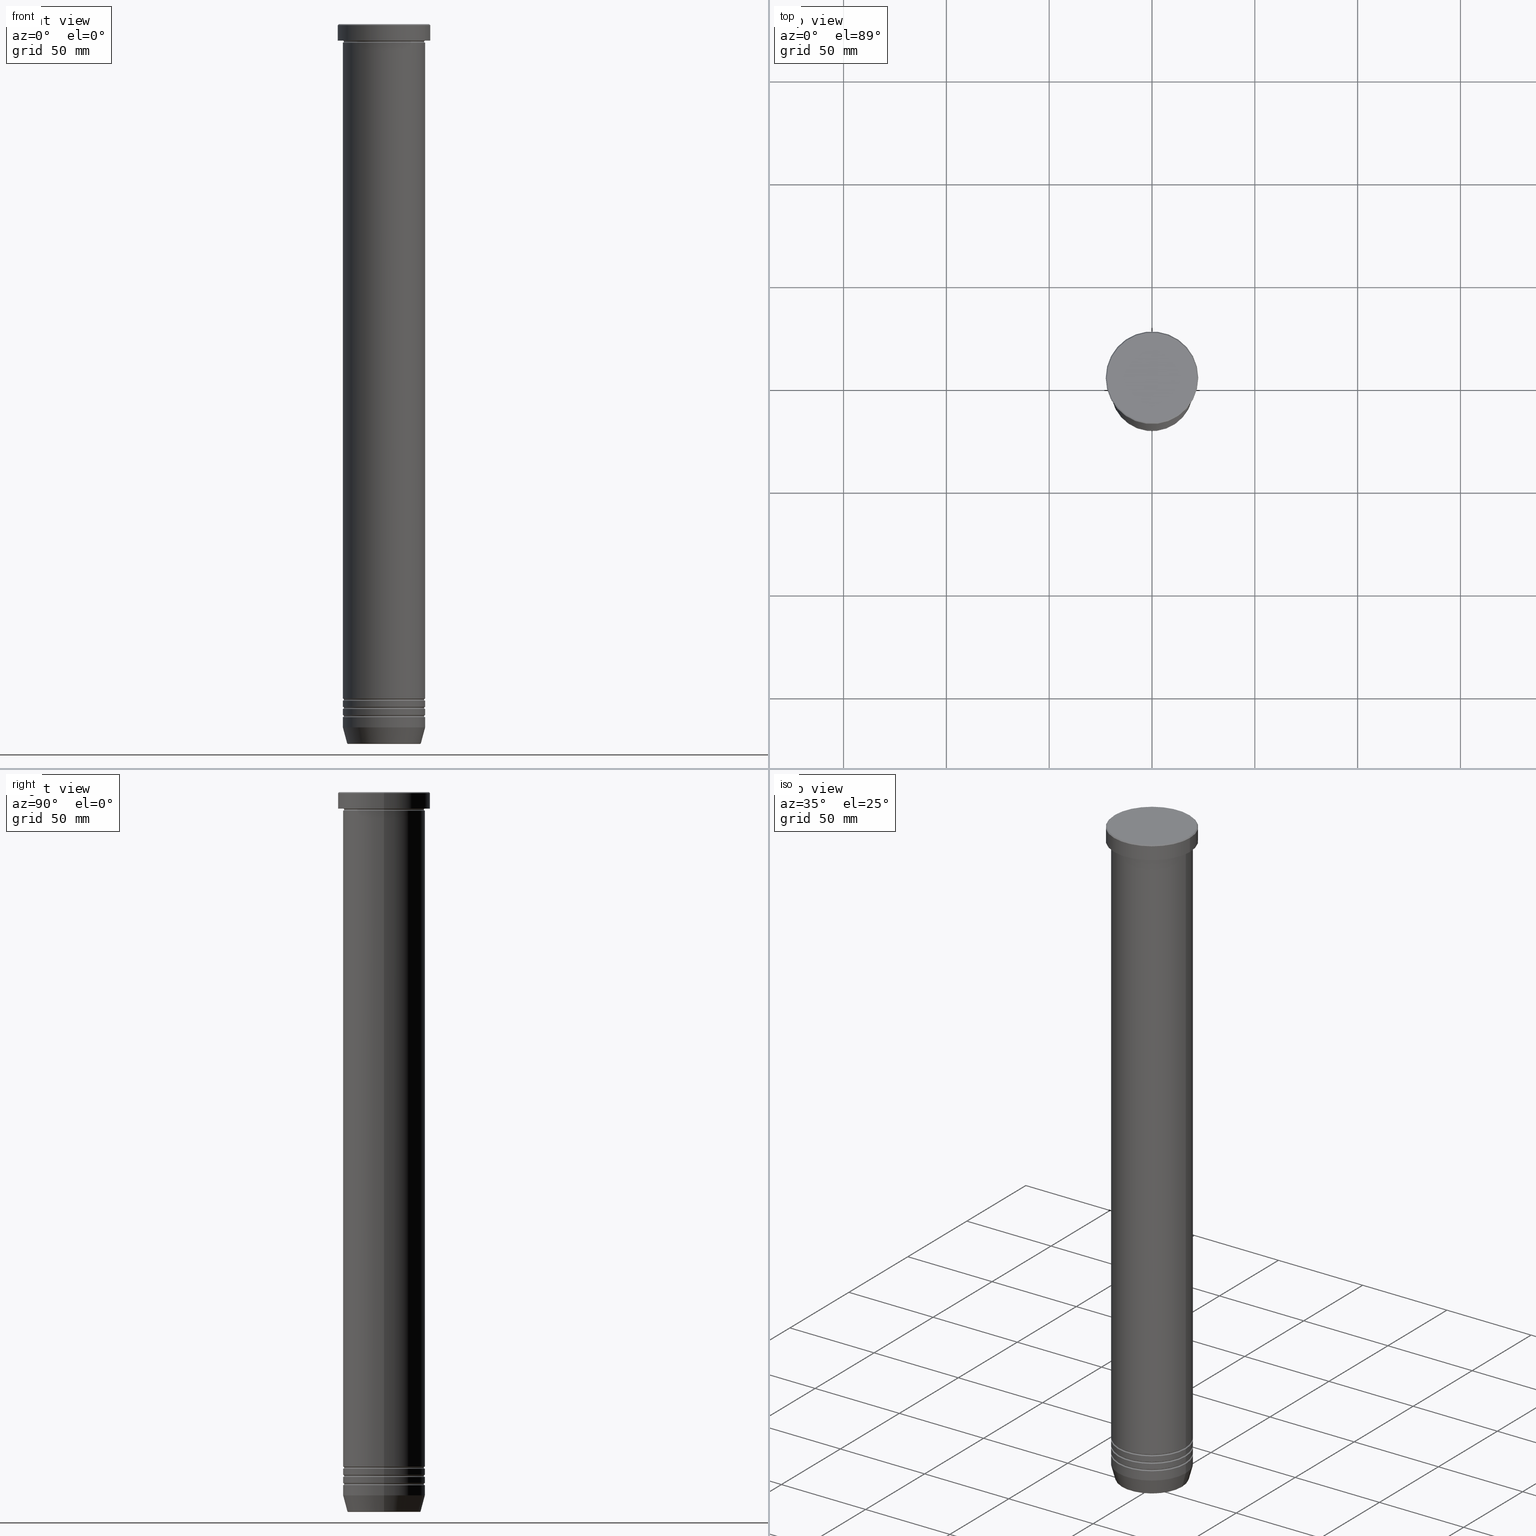
[diagram: canonical four-view strip — front | top / right | iso, engineering-drawing reading convention]
A machine part, canonical four-view strip (front | top / right | iso — engineering-drawing reading convention). The complete STEP part file that produces these views, byte-faithful:
ISO-10303-21;
HEADER;
FILE_DESCRIPTION (( 'STEP AP203' ),
    '1' );
FILE_NAME ('f05d.STEP',
    '2024-01-02T17:07:33',
    ( '' ),
    ( '' ),
    'SwSTEP 2.0',
    'SolidWorks 2019',
    '' );
FILE_SCHEMA (( 'CONFIG_CONTROL_DESIGN' ));
ENDSEC;

DATA;
#1 = CARTESIAN_POINT ( 'NONE',  ( 0.000000000000000000, 0.000000000000000000, -336.5000000000000568 ) ) ;
#2 = ORIENTED_EDGE ( 'NONE', *, *, #207, .T. ) ;
#3 = CARTESIAN_POINT ( 'NONE',  ( -22.50000000000000000, 2.755455298081544778E-15, -0.5000000000000213163 ) ) ;
#4 = VERTEX_POINT ( 'NONE', #961 ) ;
#5 = EDGE_CURVE ( 'NONE', #472, #220, #252, .T. ) ;
#6 = DIRECTION ( 'NONE',  ( 1.000000000000000000, 0.000000000000000000, 0.000000000000000000 ) ) ;
#7 = VERTEX_POINT ( 'NONE', #811 ) ;
#8 = DIRECTION ( 'NONE',  ( 0.000000000000000000, 0.000000000000000000, -1.000000000000000000 ) ) ;
#9 = AXIS2_PLACEMENT_3D ( 'NONE', #451, #858, #757 ) ;
#10 = VECTOR ( 'NONE', #820, 1000.000000000000000 ) ;
#11 = CARTESIAN_POINT ( 'NONE',  ( 0.000000000000000000, 0.000000000000000000, -70.00000000000000000 ) ) ;
#12 = EDGE_CURVE ( 'NONE', #264, #916, #963, .T. ) ;
#13 = ORIENTED_EDGE ( 'NONE', *, *, #305, .T. ) ;
#14 = ORIENTED_EDGE ( 'NONE', *, *, #618, .F. ) ;
#15 = TOROIDAL_SURFACE ( 'NONE', #296, 20.00000000000000000, 0.5000000000000000000 ) ;
#16 = ADVANCED_FACE ( 'NONE', ( #200 ), #15, .F. ) ;
#17 = DIRECTION ( 'NONE',  ( 1.000000000000000000, 0.000000000000000000, 0.000000000000000000 ) ) ;
#18 = DATE_AND_TIME ( #249, #778 ) ;
#19 = CARTESIAN_POINT ( 'NONE',  ( 17.95570587970606269, 0.000000000000000000, -349.6294095225512706 ) ) ;
#20 = VERTEX_POINT ( 'NONE', #591 ) ;
#21 = DIRECTION ( 'NONE',  ( -0.000000000000000000, -1.000000000000000000, -0.000000000000000000 ) ) ;
#22 = CIRCLE ( 'NONE', #798, 19.49999999999999645 ) ;
#23 = AXIS2_PLACEMENT_3D ( 'NONE', #930, #537, #862 ) ;
#24 = AXIS2_PLACEMENT_3D ( 'NONE', #632, #964, #638 ) ;
#25 = AXIS2_PLACEMENT_3D ( 'NONE', #157, #640, #809 ) ;
#26 = ORIENTED_EDGE ( 'NONE', *, *, #195, .T. ) ;
#27 = DIRECTION ( 'NONE',  ( 0.000000000000000000, 0.000000000000000000, -1.000000000000000000 ) ) ;
#28 = FACE_OUTER_BOUND ( 'NONE', #38, .T. ) ;
#29 = ADVANCED_FACE ( 'NONE', ( #514 ), #179, .F. ) ;
#30 = SHAPE_DEFINITION_REPRESENTATION ( #277, #36 ) ;
#31 = EDGE_LOOP ( 'NONE', ( #475, #365 ) ) ;
#32 = DIRECTION ( 'NONE',  ( 0.000000000000000000, 0.000000000000000000, -1.000000000000000000 ) ) ;
#33 = DIRECTION ( 'NONE',  ( 1.000000000000000000, 0.000000000000000000, 0.000000000000000000 ) ) ;
#34 = ORIENTED_EDGE ( 'NONE', *, *, #470, .F. ) ;
#35 = EDGE_CURVE ( 'NONE', #105, #374, #509, .T. ) ;
#36 = ADVANCED_BREP_SHAPE_REPRESENTATION ( 'f05d', ( #194, #540, #47 ), #531 ) ;
#37 = DIRECTION ( 'NONE',  ( 0.000000000000000000, 0.000000000000000000, 1.000000000000000000 ) ) ;
#38 = EDGE_LOOP ( 'NONE', ( #198, #340, #40, #852 ) ) ;
#39 = FACE_OUTER_BOUND ( 'NONE', #937, .T. ) ;
#40 = ORIENTED_EDGE ( 'NONE', *, *, #840, .F. ) ;
#41 = AXIS2_PLACEMENT_3D ( 'NONE', #923, #205, #387 ) ;
#42 = AXIS2_PLACEMENT_3D ( 'NONE', #974, #877, #548 ) ;
#43 = LOCAL_TIME ( 18, 7, 33.00000000000000000, #622 ) ;
#44 = MECHANICAL_CONTEXT ( 'NONE', #723, 'mechanical' ) ;
#45 = EDGE_LOOP ( 'NONE', ( #728, #355 ) ) ;
#46 = PLANE ( 'NONE',  #802 ) ;
#47 = AXIS2_PLACEMENT_3D ( 'NONE', #454, #37, #376 ) ;
#48 = ADVANCED_FACE ( 'NONE', ( #114 ), #765, .F. ) ;
#49 = CYLINDRICAL_SURFACE ( 'NONE', #306, 19.99999999999999645 ) ;
#50 = CARTESIAN_POINT ( 'NONE',  ( -19.49999999999999645, 2.418677428316021937E-15, -328.5000000000000568 ) ) ;
#51 = ORIENTED_EDGE ( 'NONE', *, *, #368, .T. ) ;
#52 = EDGE_LOOP ( 'NONE', ( #443, #788 ) ) ;
#53 = CARTESIAN_POINT ( 'NONE',  ( 0.000000000000000000, 0.000000000000000000, -328.5000000000000568 ) ) ;
#54 = VECTOR ( 'NONE', #178, 1000.000000000000000 ) ;
#55 = EDGE_CURVE ( 'NONE', #374, #263, #336, .T. ) ;
#56 = CARTESIAN_POINT ( 'NONE',  ( 0.000000000000000000, 0.000000000000000000, 0.000000000000000000 ) ) ;
#57 = CARTESIAN_POINT ( 'NONE',  ( 0.000000000000000000, 0.000000000000000000, -332.5000000000000568 ) ) ;
#58 = VERTEX_POINT ( 'NONE', #360 ) ;
#59 = SECURITY_CLASSIFICATION_LEVEL ( 'unclassified' ) ;
#60 = ORIENTED_EDGE ( 'NONE', *, *, #542, .F. ) ;
#61 = CARTESIAN_POINT ( 'NONE',  ( 0.000000000000000000, 3.469446951953614189E-15, -70.00000000000000000 ) ) ;
#62 = CARTESIAN_POINT ( 'NONE',  ( 0.000000000000000000, 0.000000000000000000, 0.000000000000000000 ) ) ;
#63 = DIRECTION ( 'NONE',  ( 0.000000000000000000, 0.000000000000000000, -1.000000000000000000 ) ) ;
#64 = ORIENTED_EDGE ( 'NONE', *, *, #928, .F. ) ;
#65 = DIRECTION ( 'NONE',  ( 1.000000000000000000, 0.000000000000000000, 0.000000000000000000 ) ) ;
#66 = CARTESIAN_POINT ( 'NONE',  ( -20.00000000000000000, 0.000000000000000000, -8.000000000000000000 ) ) ;
#67 = AXIS2_PLACEMENT_3D ( 'NONE', #100, #721, #445 ) ;
#68 = DIRECTION ( 'NONE',  ( -1.000000000000000000, 0.000000000000000000, 0.000000000000000000 ) ) ;
#69 = AXIS2_PLACEMENT_3D ( 'NONE', #497, #262, #192 ) ;
#70 = ORIENTED_EDGE ( 'NONE', *, *, #499, .F. ) ;
#71 = AXIS2_PLACEMENT_3D ( 'NONE', #139, #940, #1029 ) ;
#72 = EDGE_CURVE ( 'NONE', #855, #535, #117, .T. ) ;
#73 = DIRECTION ( 'NONE',  ( 0.000000000000000000, -1.000000000000000000, 0.000000000000000000 ) ) ;
#74 = DIRECTION ( 'NONE',  ( 1.000000000000000000, 0.000000000000000000, 0.000000000000000000 ) ) ;
#75 = DIRECTION ( 'NONE',  ( 1.000000000000000000, 0.000000000000000000, 0.000000000000000000 ) ) ;
#76 = CC_DESIGN_DATE_AND_TIME_ASSIGNMENT ( #115, #338, ( #868 ) ) ;
#77 = DIRECTION ( 'NONE',  ( 1.000000000000000000, 0.000000000000000000, 0.000000000000000000 ) ) ;
#78 = ORIENTED_EDGE ( 'NONE', *, *, #441, .F. ) ;
#79 = DIRECTION ( 'NONE',  ( 1.000000000000000000, 0.000000000000000000, 0.000000000000000000 ) ) ;
#80 = FACE_BOUND ( 'NONE', #973, .T. ) ;
#81 = PERSON_AND_ORGANIZATION ( #1003, #504 ) ;
#82 = ORIENTED_EDGE ( 'NONE', *, *, #932, .T. ) ;
#83 = CARTESIAN_POINT ( 'NONE',  ( 19.99999999999999645, 0.000000000000000000, -332.0000000000000568 ) ) ;
#84 = ORIENTED_EDGE ( 'NONE', *, *, #594, .F. ) ;
#85 = ADVANCED_FACE ( 'NONE', ( #283 ), #317, .F. ) ;
#86 = AXIS2_PLACEMENT_3D ( 'NONE', #142, #1024, #527 ) ;
#87 = CIRCLE ( 'NONE', #24, 17.95570587970606269 ) ;
#88 = AXIS2_PLACEMENT_3D ( 'NONE', #246, #1039, #474 ) ;
#89 = DIRECTION ( 'NONE',  ( 0.2588190451025212391, 0.000000000000000000, 0.9659258262890680902 ) ) ;
#90 = PERSON_AND_ORGANIZATION ( #1003, #504 ) ;
#91 = ORIENTED_EDGE ( 'NONE', *, *, #184, .F. ) ;
#92 = DIRECTION ( 'NONE',  ( -1.000000000000000000, 1.224646799147349509E-16, 0.000000000000000000 ) ) ;
#93 = EDGE_CURVE ( 'NONE', #374, #105, #650, .T. ) ;
#94 = DIRECTION ( 'NONE',  ( -0.000000000000000000, -0.000000000000000000, 1.000000000000000000 ) ) ;
#95 = AXIS2_PLACEMENT_3D ( 'NONE', #595, #919, #128 ) ;
#96 = DIRECTION ( 'NONE',  ( 1.000000000000000000, 0.000000000000000000, 0.000000000000000000 ) ) ;
#97 = FACE_OUTER_BOUND ( 'NONE', #698, .T. ) ;
#98 = ORIENTED_EDGE ( 'NONE', *, *, #532, .F. ) ;
#99 = DIRECTION ( 'NONE',  ( -0.000000000000000000, -0.000000000000000000, 1.000000000000000000 ) ) ;
#100 = CARTESIAN_POINT ( 'NONE',  ( 19.99999999999999645, 0.000000000000000000, -336.5000000000000568 ) ) ;
#101 = ADVANCED_FACE ( 'NONE', ( #761 ), #944, .T. ) ;
#102 = EDGE_LOOP ( 'NONE', ( #691, #805, #127, #1025 ) ) ;
#103 = LINE ( 'NONE', #636, #1009 ) ;
#104 = CARTESIAN_POINT ( 'NONE',  ( -20.00000000000000000, 0.000000000000000000, -8.500000000000000000 ) ) ;
#105 = VERTEX_POINT ( 'NONE', #697 ) ;
#106 = CIRCLE ( 'NONE', #122, 17.47274296656153325 ) ;
#107 = CIRCLE ( 'NONE', #672, 20.00000000000000000 ) ;
#108 = AXIS2_PLACEMENT_3D ( 'NONE', #795, #942, #950 ) ;
#109 = FACE_OUTER_BOUND ( 'NONE', #292, .T. ) ;
#110 = ADVANCED_FACE ( 'NONE', ( #1015 ), #221, .F. ) ;
#111 = CARTESIAN_POINT ( 'NONE',  ( 0.000000000000000000, 0.000000000000000000, -336.0000000000000568 ) ) ;
#112 = LINE ( 'NONE', #824, #1033 ) ;
#113 = VERTEX_POINT ( 'NONE', #301 ) ;
#114 = FACE_OUTER_BOUND ( 'NONE', #449, .T. ) ;
#115 = DATE_AND_TIME ( #389, #43 ) ;
#116 = DIRECTION ( 'NONE',  ( -0.000000000000000000, -0.000000000000000000, 1.000000000000000000 ) ) ;
#117 = LINE ( 'NONE', #663, #999 ) ;
#118 = EDGE_CURVE ( 'NONE', #113, #263, #647, .T. ) ;
#119 = FACE_OUTER_BOUND ( 'NONE', #295, .T. ) ;
#120 = AXIS2_PLACEMENT_3D ( 'NONE', #240, #161, #814 ) ;
#121 = AXIS2_PLACEMENT_3D ( 'NONE', #839, #763, #33 ) ;
#122 = AXIS2_PLACEMENT_3D ( 'NONE', #557, #879, #416 ) ;
#123 = CC_DESIGN_APPROVAL ( #817, ( #219 ) ) ;
#124 = ORIENTED_EDGE ( 'NONE', *, *, #902, .T. ) ;
#125 = ORIENTED_EDGE ( 'NONE', *, *, #921, .F. ) ;
#126 = PRODUCT_DEFINITION ( 'NEZN�M�', '', #219, #911 ) ;
#127 = ORIENTED_EDGE ( 'NONE', *, *, #532, .T. ) ;
#128 = DIRECTION ( 'NONE',  ( -1.000000000000000000, 0.000000000000000000, 0.000000000000000000 ) ) ;
#129 = DIRECTION ( 'NONE',  ( -0.000000000000000000, -0.000000000000000000, 1.000000000000000000 ) ) ;
#130 = ADVANCED_FACE ( 'NONE', ( #846 ), #46, .F. ) ;
#131 = ORIENTED_EDGE ( 'NONE', *, *, #375, .F. ) ;
#132 = CYLINDRICAL_SURFACE ( 'NONE', #904, 20.00000000000000000 ) ;
#133 = DIRECTION ( 'NONE',  ( -0.000000000000000000, -0.000000000000000000, 1.000000000000000000 ) ) ;
#134 = EDGE_LOOP ( 'NONE', ( #91, #593, #402, #84 ) ) ;
#135 = CIRCLE ( 'NONE', #704, 0.5000000000000004441 ) ;
#136 = CIRCLE ( 'NONE', #502, 19.99999999999999289 ) ;
#137 = ADVANCED_FACE ( 'NONE', ( #231 ), #254, .F. ) ;
#138 = ORIENTED_EDGE ( 'NONE', *, *, #316, .T. ) ;
#139 = CARTESIAN_POINT ( 'NONE',  ( 0.000000000000000000, 0.000000000000000000, -336.5000000000000568 ) ) ;
#140 = AXIS2_PLACEMENT_3D ( 'NONE', #978, #405, #871 ) ;
#141 = DIRECTION ( 'NONE',  ( -0.000000000000000000, -0.000000000000000000, 1.000000000000000000 ) ) ;
#142 = CARTESIAN_POINT ( 'NONE',  ( 0.000000000000000000, 3.673940397442060124E-14, -350.0000000000000568 ) ) ;
#143 = ORIENTED_EDGE ( 'NONE', *, *, #953, .T. ) ;
#144 = PERSON_AND_ORGANIZATION_ROLE ( 'creator' ) ;
#145 = CLOSED_SHELL ( 'NONE', ( #1004, #48, #273, #984, #29, #110, #330, #785, #293, #1026, #702, #669, #515, #101, #827, #897, #130, #662, #687, #794, #582, #280, #971, #85, #137, #947 ) ) ;
#146 = CARTESIAN_POINT ( 'NONE',  ( 0.000000000000000000, 0.000000000000000000, -342.0000000000000000 ) ) ;
#147 = ORIENTED_EDGE ( 'NONE', *, *, #305, .F. ) ;
#148 = VERTEX_POINT ( 'NONE', #66 ) ;
#149 = FACE_OUTER_BOUND ( 'NONE', #630, .T. ) ;
#150 = ORIENTED_EDGE ( 'NONE', *, *, #324, .T. ) ;
#151 = EDGE_CURVE ( 'NONE', #678, #7, #1037, .T. ) ;
#152 = ORIENTED_EDGE ( 'NONE', *, *, #257, .T. ) ;
#153 = VECTOR ( 'NONE', #642, 1000.000000000000114 ) ;
#154 = LOCAL_TIME ( 18, 7, 33.00000000000000000, #780 ) ;
#155 = ADVANCED_FACE ( 'NONE', ( #149 ), #226, .T. ) ;
#156 = CARTESIAN_POINT ( 'NONE',  ( -19.50000000000000000, 2.418677428316022726E-15, -8.500000000000000000 ) ) ;
#157 = CARTESIAN_POINT ( 'NONE',  ( 0.000000000000000000, 0.000000000000000000, -332.0000000000000568 ) ) ;
#158 = CARTESIAN_POINT ( 'NONE',  ( 0.000000000000000000, 20.00000000000000000, -70.00000000000000000 ) ) ;
#159 = CARTESIAN_POINT ( 'NONE',  ( 0.000000000000000000, 0.000000000000000000, -70.00000000000000000 ) ) ;
#160 = ADVANCED_FACE ( 'NONE', ( #1022 ), #444, .T. ) ;
#161 = DIRECTION ( 'NONE',  ( -0.000000000000000000, -0.000000000000000000, 1.000000000000000000 ) ) ;
#162 = DIRECTION ( 'NONE',  ( -1.000000000000000000, 0.000000000000000000, -0.000000000000000000 ) ) ;
#163 = DIRECTION ( 'NONE',  ( 1.224646799147353207E-16, 1.000000000000000000, 0.000000000000000000 ) ) ;
#164 = DIRECTION ( 'NONE',  ( -1.000000000000000000, 0.000000000000000000, -0.000000000000000000 ) ) ;
#165 = DIRECTION ( 'NONE',  ( 0.000000000000000000, 0.000000000000000000, -1.000000000000000000 ) ) ;
#166 = EDGE_CURVE ( 'NONE', #58, #400, #1054, .T. ) ;
#167 = AXIS2_PLACEMENT_3D ( 'NONE', #803, #165, #245 ) ;
#168 = CARTESIAN_POINT ( 'NONE',  ( 0.000000000000000000, 0.000000000000000000, -332.5000000000000568 ) ) ;
#169 = CIRCLE ( 'NONE', #381, 20.00000000000000000 ) ;
#170 = AXIS2_PLACEMENT_3D ( 'NONE', #248, #562, #886 ) ;
#171 = PLANE ( 'NONE',  #584 ) ;
#172 = CARTESIAN_POINT ( 'NONE',  ( -20.00000000000000000, 2.449293598294706513E-15, -8.500000000000000000 ) ) ;
#173 = AXIS2_PLACEMENT_3D ( 'NONE', #966, #334, #485 ) ;
#174 = CARTESIAN_POINT ( 'NONE',  ( 22.50000000000000000, 0.000000000000000000, -7.999999999999998224 ) ) ;
#175 = PERSON_AND_ORGANIZATION ( #1003, #504 ) ;
#176 = ORIENTED_EDGE ( 'NONE', *, *, #195, .F. ) ;
#177 = CARTESIAN_POINT ( 'NONE',  ( 0.000000000000000000, 0.000000000000000000, 0.000000000000000000 ) ) ;
#178 = DIRECTION ( 'NONE',  ( -0.000000000000000000, -0.000000000000000000, 1.000000000000000000 ) ) ;
#179 = TOROIDAL_SURFACE ( 'NONE', #401, 19.99999999999999645, 0.5000000000000000000 ) ;
#180 = DIRECTION ( 'NONE',  ( 1.000000000000000000, 0.000000000000000000, 0.000000000000000000 ) ) ;
#181 = FACE_OUTER_BOUND ( 'NONE', #193, .T. ) ;
#182 = EDGE_LOOP ( 'NONE', ( #458, #796, #751, #282 ) ) ;
#183 = CARTESIAN_POINT ( 'NONE',  ( 0.000000000000000000, 0.000000000000000000, -9.000000000000001776 ) ) ;
#184 = EDGE_CURVE ( 'NONE', #604, #512, #786, .T. ) ;
#185 = ORIENTED_EDGE ( 'NONE', *, *, #754, .T. ) ;
#186 = ORIENTED_EDGE ( 'NONE', *, *, #542, .T. ) ;
#187 = CIRCLE ( 'NONE', #583, 0.5000000000000004441 ) ;
#188 = CIRCLE ( 'NONE', #484, 19.99999999999999289 ) ;
#189 = AXIS2_PLACEMENT_3D ( 'NONE', #394, #538, #313 ) ;
#190 = DIRECTION ( 'NONE',  ( 1.000000000000000000, 0.000000000000000000, 0.000000000000000000 ) ) ;
#191 = AXIS2_PLACEMENT_3D ( 'NONE', #414, #713, #968 ) ;
#192 = DIRECTION ( 'NONE',  ( 1.000000000000000000, 0.000000000000000000, 0.000000000000000000 ) ) ;
#193 = EDGE_LOOP ( 'NONE', ( #682, #826, #889, #666 ) ) ;
#194 = MANIFOLD_SOLID_BREP ( 'Zkosen�1', #715 ) ;
#195 = EDGE_CURVE ( 'NONE', #359, #528, #369, .T. ) ;
#196 = ORIENTED_EDGE ( 'NONE', *, *, #368, .F. ) ;
#197 = DIRECTION ( 'NONE',  ( 1.000000000000000000, 0.000000000000000000, 0.000000000000000000 ) ) ;
#198 = ORIENTED_EDGE ( 'NONE', *, *, #856, .T. ) ;
#199 = EDGE_CURVE ( 'NONE', #267, #4, #938, .T. ) ;
#200 = FACE_OUTER_BOUND ( 'NONE', #767, .T. ) ;
#201 = ORIENTED_EDGE ( 'NONE', *, *, #1044, .F. ) ;
#202 = AXIS2_PLACEMENT_3D ( 'NONE', #473, #773, #68 ) ;
#203 = ORIENTED_EDGE ( 'NONE', *, *, #388, .F. ) ;
#204 = DIRECTION ( 'NONE',  ( 1.000000000000000000, 0.000000000000000000, 0.000000000000000000 ) ) ;
#205 = DIRECTION ( 'NONE',  ( -0.000000000000000000, -0.000000000000000000, 1.000000000000000000 ) ) ;
#206 = VERTEX_POINT ( 'NONE', #3 ) ;
#207 = EDGE_CURVE ( 'NONE', #267, #20, #329, .T. ) ;
#208 = AXIS2_PLACEMENT_3D ( 'NONE', #655, #450, #768 ) ;
#209 = ORIENTED_EDGE ( 'NONE', *, *, #921, .T. ) ;
#210 = DIRECTION ( 'NONE',  ( -1.000000000000000000, 0.000000000000000000, -0.000000000000000000 ) ) ;
#211 = DIRECTION ( 'NONE',  ( -0.000000000000000000, -0.000000000000000000, 1.000000000000000000 ) ) ;
#212 = ORIENTED_EDGE ( 'NONE', *, *, #589, .F. ) ;
#213 = EDGE_CURVE ( 'NONE', #770, #7, #684, .T. ) ;
#214 = EDGE_LOOP ( 'NONE', ( #201, #1049, #1008, #1034 ) ) ;
#215 = CARTESIAN_POINT ( 'NONE',  ( 19.49999999999999645, 0.000000000000000000, -336.5000000000000568 ) ) ;
#216 = ORIENTED_EDGE ( 'NONE', *, *, #470, .T. ) ;
#217 = CIRCLE ( 'NONE', #121, 22.50000000000000000 ) ;
#218 = VECTOR ( 'NONE', #89, 1000.000000000000114 ) ;
#219 = PRODUCT_DEFINITION_FORMATION_WITH_SPECIFIED_SOURCE ( 'LIBOVOLN�', '', #415, .NOT_KNOWN. ) ;
#220 = VERTEX_POINT ( 'NONE', #644 ) ;
#221 = TOROIDAL_SURFACE ( 'NONE', #71, 19.99999999999999645, 0.5000000000000000000 ) ;
#222 = FACE_OUTER_BOUND ( 'NONE', #559, .T. ) ;
#223 = ORIENTED_EDGE ( 'NONE', *, *, #287, .F. ) ;
#224 = PERSON_AND_ORGANIZATION ( #1003, #504 ) ;
#225 = ORIENTED_EDGE ( 'NONE', *, *, #492, .F. ) ;
#226 = CYLINDRICAL_SURFACE ( 'NONE', #393, 20.00000000000000000 ) ;
#227 = EDGE_CURVE ( 'NONE', #535, #58, #487, .T. ) ;
#228 = CARTESIAN_POINT ( 'NONE',  ( 19.99999999999999289, 0.000000000000000000, -328.0000000000000568 ) ) ;
#229 = ORIENTED_EDGE ( 'NONE', *, *, #589, .T. ) ;
#230 = EDGE_LOOP ( 'NONE', ( #395, #314, #654, #353 ) ) ;
#231 = FACE_OUTER_BOUND ( 'NONE', #965, .T. ) ;
#232 = EDGE_CURVE ( 'NONE', #764, #300, #483, .T. ) ;
#233 = DIRECTION ( 'NONE',  ( 1.000000000000000000, 0.000000000000000000, 0.000000000000000000 ) ) ;
#234 = CARTESIAN_POINT ( 'NONE',  ( 19.99999999999999645, 2.449293598294706119E-15, -336.5000000000000568 ) ) ;
#235 = AXIS2_PLACEMENT_3D ( 'NONE', #625, #648, #498 ) ;
#236 = TOROIDAL_SURFACE ( 'NONE', #819, 19.99999999999999645, 0.5000000000000000000 ) ;
#237 = ADVANCED_FACE ( 'NONE', ( #972 ), #977, .F. ) ;
#238 = CIRCLE ( 'NONE', #910, 20.00000000000000000 ) ;
#239 = DIRECTION ( 'NONE',  ( 1.000000000000000000, 0.000000000000000000, 0.000000000000000000 ) ) ;
#240 = CARTESIAN_POINT ( 'NONE',  ( 0.000000000000000000, 0.000000000000000000, 0.000000000000000000 ) ) ;
#241 = FACE_OUTER_BOUND ( 'NONE', #284, .T. ) ;
#242 = ORIENTED_EDGE ( 'NONE', *, *, #184, .T. ) ;
#243 = EDGE_CURVE ( 'NONE', #931, #916, #310, .T. ) ;
#244 = CARTESIAN_POINT ( 'NONE',  ( 17.47274296656153325, 0.000000000000000000, -349.5000000000000568 ) ) ;
#245 = DIRECTION ( 'NONE',  ( -1.000000000000000000, 0.000000000000000000, 0.000000000000000000 ) ) ;
#246 = CARTESIAN_POINT ( 'NONE',  ( 0.000000000000000000, 0.000000000000000000, -70.00000000000000000 ) ) ;
#247 = DIRECTION ( 'NONE',  ( -0.000000000000000000, -0.000000000000000000, 1.000000000000000000 ) ) ;
#248 = CARTESIAN_POINT ( 'NONE',  ( 19.99999999999999645, 0.000000000000000000, -332.5000000000000568 ) ) ;
#249 = CALENDAR_DATE ( 2024, 2, 1 ) ;
#250 = ORIENTED_EDGE ( 'NONE', *, *, #441, .T. ) ;
#251 = DIRECTION ( 'NONE',  ( 1.224646799147353207E-16, 1.000000000000000000, 0.000000000000000000 ) ) ;
#252 = LINE ( 'NONE', #570, #54 ) ;
#253 = TOROIDAL_SURFACE ( 'NONE', #934, 20.00000000000000000, 0.5000000000000000000 ) ;
#254 = TOROIDAL_SURFACE ( 'NONE', #274, 19.99999999999999645, 0.5000000000000000000 ) ;
#255 = CARTESIAN_POINT ( 'NONE',  ( -21.99999999999997868, 0.000000000000000000, 0.000000000000000000 ) ) ;
#256 = CARTESIAN_POINT ( 'NONE',  ( -19.99999999999999645, 2.449293598294706119E-15, -328.5000000000000568 ) ) ;
#257 = EDGE_CURVE ( 'NONE', #503, #916, #22, .T. ) ;
#258 = CARTESIAN_POINT ( 'NONE',  ( 0.000000000000000000, 0.000000000000000000, 0.000000000000000000 ) ) ;
#259 = CARTESIAN_POINT ( 'NONE',  ( -20.00000000000000000, 2.449293598294706513E-15, -70.00000000000000000 ) ) ;
#260 = EDGE_LOOP ( 'NONE', ( #616, #299, #804, #455 ) ) ;
#261 = CARTESIAN_POINT ( 'NONE',  ( -20.00000000000000000, 2.449293598294706513E-15, -9.000000000000001776 ) ) ;
#262 = DIRECTION ( 'NONE',  ( -0.000000000000000000, -0.000000000000000000, 1.000000000000000000 ) ) ;
#263 = VERTEX_POINT ( 'NONE', #959 ) ;
#264 = VERTEX_POINT ( 'NONE', #574 ) ;
#265 = CC_DESIGN_PERSON_AND_ORGANIZATION_ASSIGNMENT ( #398, #695, ( #868 ) ) ;
#266 = ORIENTED_EDGE ( 'NONE', *, *, #953, .F. ) ;
#267 = VERTEX_POINT ( 'NONE', #567 ) ;
#268 = DIRECTION ( 'NONE',  ( 0.000000000000000000, 0.000000000000000000, -1.000000000000000000 ) ) ;
#269 = FACE_OUTER_BOUND ( 'NONE', #624, .T. ) ;
#270 = AXIS2_PLACEMENT_3D ( 'NONE', #505, #439, #986 ) ;
#271 = CIRCLE ( 'NONE', #848, 19.49999999999999645 ) ;
#272 = CC_DESIGN_APPROVAL ( #352, ( #126 ) ) ;
#273 = ADVANCED_FACE ( 'NONE', ( #418 ), #463, .F. ) ;
#274 = AXIS2_PLACEMENT_3D ( 'NONE', #53, #606, #533 ) ;
#275 = VERTEX_POINT ( 'NONE', #546 ) ;
#276 = CARTESIAN_POINT ( 'NONE',  ( 0.000000000000000000, 0.000000000000000000, -8.500000000000000000 ) ) ;
#277 = PRODUCT_DEFINITION_SHAPE ( 'NONE', 'NONE',  #126 ) ;
#278 = DIRECTION ( 'NONE',  ( -0.000000000000000000, -0.000000000000000000, 1.000000000000000000 ) ) ;
#279 = FACE_OUTER_BOUND ( 'NONE', #230, .T. ) ;
#280 = ADVANCED_FACE ( 'NONE', ( #1050 ), #610, .F. ) ;
#281 = DIRECTION ( 'NONE',  ( 1.000000000000000000, 0.000000000000000000, 0.000000000000000000 ) ) ;
#282 = ORIENTED_EDGE ( 'NONE', *, *, #421, .T. ) ;
#283 = FACE_OUTER_BOUND ( 'NONE', #1040, .T. ) ;
#284 = EDGE_LOOP ( 'NONE', ( #753, #125, #216, #64 ) ) ;
#285 = ORIENTED_EDGE ( 'NONE', *, *, #232, .T. ) ;
#286 = DIRECTION ( 'NONE',  ( 1.000000000000000000, 0.000000000000000000, 0.000000000000000000 ) ) ;
#287 = EDGE_CURVE ( 'NONE', #742, #1005, #563, .T. ) ;
#288 = FACE_OUTER_BOUND ( 'NONE', #45, .T. ) ;
#289 = CIRCLE ( 'NONE', #412, 20.00000000000000000 ) ;
#290 = AXIS2_PLACEMENT_3D ( 'NONE', #466, #834, #1017 ) ;
#291 = APPROVAL_STATUS ( 'not_yet_approved' ) ;
#292 = EDGE_LOOP ( 'NONE', ( #392, #138, #1036, #556 ) ) ;
#293 = ADVANCED_FACE ( 'NONE', ( #181 ), #496, .T. ) ;
#294 = CARTESIAN_POINT ( 'NONE',  ( 0.000000000000000000, 0.000000000000000000, -8.500000000000000000 ) ) ;
#295 = EDGE_LOOP ( 'NONE', ( #782, #590, #482, #586 ) ) ;
#296 = AXIS2_PLACEMENT_3D ( 'NONE', #276, #27, #746 ) ;
#297 = DIRECTION ( 'NONE',  ( 1.224646799147353207E-16, 1.000000000000000000, 0.000000000000000000 ) ) ;
#298 = DIRECTION ( 'NONE',  ( 1.000000000000000000, 0.000000000000000000, 0.000000000000000000 ) ) ;
#299 = ORIENTED_EDGE ( 'NONE', *, *, #343, .F. ) ;
#300 = VERTEX_POINT ( 'NONE', #83 ) ;
#301 = CARTESIAN_POINT ( 'NONE',  ( -19.99999999999999289, 2.449293598294705724E-15, -336.0000000000000568 ) ) ;
#302 = CARTESIAN_POINT ( 'NONE',  ( -20.00000000000000000, 2.449293598294706513E-15, -342.0000000000000000 ) ) ;
#303 = LINE ( 'NONE', #521, #430 ) ;
#304 = AXIS2_PLACEMENT_3D ( 'NONE', #560, #716, #424 ) ;
#305 = EDGE_CURVE ( 'NONE', #742, #377, #1028, .T. ) ;
#306 = AXIS2_PLACEMENT_3D ( 'NONE', #318, #383, #619 ) ;
#307 = AXIS2_PLACEMENT_3D ( 'NONE', #234, #362, #657 ) ;
#308 = APPROVAL_PERSON_ORGANIZATION ( #617, #352, #735 ) ;
#309 = DIRECTION ( 'NONE',  ( 1.000000000000000000, 0.000000000000000000, 0.000000000000000000 ) ) ;
#310 = CIRCLE ( 'NONE', #887, 0.5000000000000004441 ) ;
#311 = TOROIDAL_SURFACE ( 'NONE', #755, 20.00000000000000000, 0.5000000000000000000 ) ;
#312 = DIRECTION ( 'NONE',  ( -0.000000000000000000, -0.000000000000000000, 1.000000000000000000 ) ) ;
#313 = DIRECTION ( 'NONE',  ( 1.000000000000000000, 0.000000000000000000, 0.000000000000000000 ) ) ;
#314 = ORIENTED_EDGE ( 'NONE', *, *, #465, .F. ) ;
#315 = APPROVAL_ROLE ( '' ) ;
#316 = EDGE_CURVE ( 'NONE', #113, #855, #136, .T. ) ;
#317 = TOROIDAL_SURFACE ( 'NONE', #95, 19.99999999999999645, 0.5000000000000000000 ) ;
#318 = CARTESIAN_POINT ( 'NONE',  ( 0.000000000000000000, 0.000000000000000000, 0.000000000000000000 ) ) ;
#319 = FACE_OUTER_BOUND ( 'NONE', #967, .T. ) ;
#320 = DIRECTION ( 'NONE',  ( 0.000000000000000000, 0.000000000000000000, -1.000000000000000000 ) ) ;
#321 = ORIENTED_EDGE ( 'NONE', *, *, #452, .F. ) ;
#322 = DIRECTION ( 'NONE',  ( 0.000000000000000000, 0.000000000000000000, -1.000000000000000000 ) ) ;
#323 = LINE ( 'NONE', #547, #10 ) ;
#324 = EDGE_CURVE ( 'NONE', #20, #732, #660, .T. ) ;
#325 = CARTESIAN_POINT ( 'NONE',  ( 0.000000000000000000, 0.000000000000000000, -336.5000000000000568 ) ) ;
#326 = DIRECTION ( 'NONE',  ( -1.000000000000000000, 0.000000000000000000, 0.000000000000000000 ) ) ;
#327 = AXIS2_PLACEMENT_3D ( 'NONE', #948, #1055, #326 ) ;
#328 = EDGE_LOOP ( 'NONE', ( #209, #524, #816, #901 ) ) ;
#329 = CIRCLE ( 'NONE', #907, 0.5000000000000004441 ) ;
#330 = ADVANCED_FACE ( 'NONE', ( #736 ), #990, .T. ) ;
#331 = CARTESIAN_POINT ( 'NONE',  ( 21.99999999999997868, 2.724839128102859413E-15, 0.000000000000000000 ) ) ;
#332 = AXIS2_PLACEMENT_3D ( 'NONE', #431, #211, #849 ) ;
#333 = PERSON_AND_ORGANIZATION ( #1003, #504 ) ;
#334 = DIRECTION ( 'NONE',  ( 0.000000000000000000, 0.000000000000000000, -1.000000000000000000 ) ) ;
#335 = ORIENTED_EDGE ( 'NONE', *, *, #1061, .F. ) ;
#336 = CIRCLE ( 'NONE', #783, 0.5000000000000004441 ) ;
#337 = LINE ( 'NONE', #699, #596 ) ;
#338 = DATE_TIME_ROLE ( 'classification_date' ) ;
#339 = APPROVAL_STATUS ( 'not_yet_approved' ) ;
#340 = ORIENTED_EDGE ( 'NONE', *, *, #287, .T. ) ;
#341 = DIRECTION ( 'NONE',  ( -1.000000000000000000, 1.224646799147349509E-16, 0.000000000000000000 ) ) ;
#342 = LINE ( 'NONE', #397, #153 ) ;
#343 = EDGE_CURVE ( 'NONE', #855, #113, #188, .T. ) ;
#344 = DIRECTION ( 'NONE',  ( 1.000000000000000000, 0.000000000000000000, 0.000000000000000000 ) ) ;
#345 = AXIS2_PLACEMENT_3D ( 'NONE', #325, #493, #79 ) ;
#346 = ORIENTED_EDGE ( 'NONE', *, *, #737, .T. ) ;
#347 = AXIS2_PLACEMENT_3D ( 'NONE', #587, #915, #1013 ) ;
#348 = APPROVAL_PERSON_ORGANIZATION ( #175, #550, #396 ) ;
#349 = CIRCLE ( 'NONE', #759, 20.00000000000000000 ) ;
#350 = COORDINATED_UNIVERSAL_TIME_OFFSET ( 1, 0, .AHEAD. ) ;
#351 = CARTESIAN_POINT ( 'NONE',  ( 0.000000000000000000, 0.000000000000000000, -8.500000000000000000 ) ) ;
#352 = APPROVAL ( #339, 'NEUR�EN�' ) ;
#353 = ORIENTED_EDGE ( 'NONE', *, *, #324, .F. ) ;
#354 = VERTEX_POINT ( 'NONE', #784 ) ;
#355 = ORIENTED_EDGE ( 'NONE', *, *, #199, .T. ) ;
#356 = AXIS2_PLACEMENT_3D ( 'NONE', #646, #981, #995 ) ;
#357 = CYLINDRICAL_SURFACE ( 'NONE', #670, 19.99999999999999645 ) ;
#358 = CARTESIAN_POINT ( 'NONE',  ( 0.000000000000000000, 0.000000000000000000, -349.6294095225512706 ) ) ;
#359 = VERTEX_POINT ( 'NONE', #331 ) ;
#360 = CARTESIAN_POINT ( 'NONE',  ( 19.49999999999999645, 0.000000000000000000, -332.5000000000000568 ) ) ;
#361 = ADVANCED_FACE ( 'NONE', ( #80, #1048 ), #807, .T. ) ;
#362 = DIRECTION ( 'NONE',  ( -1.224646799147353207E-16, 1.000000000000000000, 0.000000000000000000 ) ) ;
#363 = CARTESIAN_POINT ( 'NONE',  ( 19.99999999999999645, 0.000000000000000000, -328.5000000000000568 ) ) ;
#364 =( LENGTH_UNIT ( ) NAMED_UNIT ( * ) SI_UNIT ( .MILLI., .METRE. ) );
#365 = ORIENTED_EDGE ( 'NONE', *, *, #213, .T. ) ;
#366 = CARTESIAN_POINT ( 'NONE',  ( 20.00000000000000000, 0.000000000000000000, -8.500000000000000000 ) ) ;
#367 = CIRCLE ( 'NONE', #530, 20.00000000000000000 ) ;
#368 = EDGE_CURVE ( 'NONE', #717, #263, #271, .T. ) ;
#369 = CIRCLE ( 'NONE', #853, 21.99999999999997868 ) ;
#370 = DIRECTION ( 'NONE',  ( -0.000000000000000000, -0.000000000000000000, 1.000000000000000000 ) ) ;
#371 = CARTESIAN_POINT ( 'NONE',  ( -19.99999999999999645, 2.449293598294706119E-15, -332.0000000000000568 ) ) ;
#372 = DIRECTION ( 'NONE',  ( -1.000000000000000000, 0.000000000000000000, 0.000000000000000000 ) ) ;
#373 = DIRECTION ( 'NONE',  ( 0.000000000000000000, 0.000000000000000000, -1.000000000000000000 ) ) ;
#374 = VERTEX_POINT ( 'NONE', #870 ) ;
#375 = EDGE_CURVE ( 'NONE', #528, #359, #686, .T. ) ;
#376 = DIRECTION ( 'NONE',  ( 1.000000000000000000, 0.000000000000000000, 0.000000000000000000 ) ) ;
#377 = VERTEX_POINT ( 'NONE', #156 ) ;
#378 = ORIENTED_EDGE ( 'NONE', *, *, #375, .T. ) ;
#379 = CIRCLE ( 'NONE', #954, 0.5000000000000004441 ) ;
#380 = AXIS2_PLACEMENT_3D ( 'NONE', #358, #519, #372 ) ;
#381 = AXIS2_PLACEMENT_3D ( 'NONE', #690, #1038, #233 ) ;
#382 = CARTESIAN_POINT ( 'NONE',  ( 0.000000000000000000, 0.000000000000000000, -332.5000000000000568 ) ) ;
#383 = DIRECTION ( 'NONE',  ( -0.000000000000000000, -0.000000000000000000, 1.000000000000000000 ) ) ;
#384 = LINE ( 'NONE', #600, #410 ) ;
#385 = DIRECTION ( 'NONE',  ( -0.000000000000000000, -0.000000000000000000, 1.000000000000000000 ) ) ;
#386 = FACE_OUTER_BOUND ( 'NONE', #925, .T. ) ;
#387 = DIRECTION ( 'NONE',  ( 1.000000000000000000, 0.000000000000000000, 0.000000000000000000 ) ) ;
#388 = EDGE_CURVE ( 'NONE', #667, #674, #289, .T. ) ;
#389 = CALENDAR_DATE ( 2024, 2, 1 ) ;
#390 = DIRECTION ( 'NONE',  ( 0.000000000000000000, 0.000000000000000000, -1.000000000000000000 ) ) ;
#391 = DIRECTION ( 'NONE',  ( -1.000000000000000000, 0.000000000000000000, 0.000000000000000000 ) ) ;
#392 = ORIENTED_EDGE ( 'NONE', *, *, #696, .F. ) ;
#393 = AXIS2_PLACEMENT_3D ( 'NONE', #679, #781, #74 ) ;
#394 = CARTESIAN_POINT ( 'NONE',  ( 0.000000000000000000, 0.000000000000000000, -332.5000000000000568 ) ) ;
#395 = ORIENTED_EDGE ( 'NONE', *, *, #207, .F. ) ;
#396 = APPROVAL_ROLE ( '' ) ;
#397 = CARTESIAN_POINT ( 'NONE',  ( -17.85640646055101399, 2.186779101618791656E-15, -350.0000000000000568 ) ) ;
#398 = PERSON_AND_ORGANIZATION ( #1003, #504 ) ;
#399 = EDGE_CURVE ( 'NONE', #1005, #148, #800, .T. ) ;
#400 = VERTEX_POINT ( 'NONE', #551 ) ;
#401 = AXIS2_PLACEMENT_3D ( 'NONE', #668, #822, #520 ) ;
#402 = ORIENTED_EDGE ( 'NONE', *, *, #1061, .T. ) ;
#403 = DIRECTION ( 'NONE',  ( 1.000000000000000000, 0.000000000000000000, 0.000000000000000000 ) ) ;
#404 = ORIENTED_EDGE ( 'NONE', *, *, #93, .T. ) ;
#405 = DIRECTION ( 'NONE',  ( -1.224646799147353207E-16, 1.000000000000000000, 0.000000000000000000 ) ) ;
#406 = EDGE_CURVE ( 'NONE', #732, #674, #573, .T. ) ;
#407 = FACE_OUTER_BOUND ( 'NONE', #260, .T. ) ;
#408 = CYLINDRICAL_SURFACE ( 'NONE', #643, 20.00000000000000000 ) ;
#409 = CARTESIAN_POINT ( 'NONE',  ( 0.000000000000000000, 0.000000000000000000, -328.0000000000000568 ) ) ;
#410 = VECTOR ( 'NONE', #133, 1000.000000000000000 ) ;
#411 = ORIENTED_EDGE ( 'NONE', *, *, #869, .T. ) ;
#412 = AXIS2_PLACEMENT_3D ( 'NONE', #477, #629, #957 ) ;
#413 = AXIS2_PLACEMENT_3D ( 'NONE', #787, #865, #1045 ) ;
#414 = CARTESIAN_POINT ( 'NONE',  ( 0.000000000000000000, 0.000000000000000000, -329.0000000000000568 ) ) ;
#415 = PRODUCT ( 'f05d', 'f05d', '', ( #44 ) ) ;
#416 = DIRECTION ( 'NONE',  ( 1.000000000000000000, 0.000000000000000000, 0.000000000000000000 ) ) ;
#417 = ORIENTED_EDGE ( 'NONE', *, *, #1019, .F. ) ;
#418 = FACE_OUTER_BOUND ( 'NONE', #896, .T. ) ;
#419 = DIRECTION ( 'NONE',  ( -0.000000000000000000, -0.000000000000000000, 1.000000000000000000 ) ) ;
#420 = ORIENTED_EDGE ( 'NONE', *, *, #939, .F. ) ;
#421 = EDGE_CURVE ( 'NONE', #263, #717, #952, .T. ) ;
#422 = CARTESIAN_POINT ( 'NONE',  ( 0.000000000000000000, 0.000000000000000000, 0.000000000000000000 ) ) ;
#423 = ORIENTED_EDGE ( 'NONE', *, *, #406, .F. ) ;
#424 = DIRECTION ( 'NONE',  ( -1.000000000000000000, -1.224646799147349509E-16, 0.000000000000000000 ) ) ;
#425 = DIRECTION ( 'NONE',  ( 1.000000000000000000, 0.000000000000000000, 0.000000000000000000 ) ) ;
#426 = APPLICATION_CONTEXT ( 'configuration controlled 3d designs of mechanical parts and assemblies' ) ;
#427 = EDGE_CURVE ( 'NONE', #678, #931, #462, .T. ) ;
#428 = DIRECTION ( 'NONE',  ( -1.000000000000000000, 0.000000000000000000, 0.000000000000000000 ) ) ;
#429 = CIRCLE ( 'NONE', #884, 22.50000000000000000 ) ;
#430 = VECTOR ( 'NONE', #608, 1000.000000000000114 ) ;
#431 = CARTESIAN_POINT ( 'NONE',  ( 0.000000000000000000, 0.000000000000000000, 0.000000000000000000 ) ) ;
#432 = DIRECTION ( 'NONE',  ( -0.000000000000000000, -0.000000000000000000, 1.000000000000000000 ) ) ;
#433 = CIRCLE ( 'NONE', #1014, 0.5000000000000004441 ) ;
#434 = PRODUCT_RELATED_PRODUCT_CATEGORY ( 'detail', '', ( #415 ) ) ;
#435 = EDGE_CURVE ( 'NONE', #604, #575, #367, .T. ) ;
#436 = ORIENTED_EDGE ( 'NONE', *, *, #166, .F. ) ;
#437 = CARTESIAN_POINT ( 'NONE',  ( 0.000000000000000000, 0.000000000000000000, -337.0000000000000568 ) ) ;
#438 = CARTESIAN_POINT ( 'NONE',  ( 0.000000000000000000, 0.000000000000000000, -0.5000000000000213163 ) ) ;
#439 = DIRECTION ( 'NONE',  ( -0.000000000000000000, -1.000000000000000000, -0.000000000000000000 ) ) ;
#440 = AXIS2_PLACEMENT_3D ( 'NONE', #437, #370, #286 ) ;
#441 = EDGE_CURVE ( 'NONE', #732, #20, #87, .T. ) ;
#442 = DIRECTION ( 'NONE',  ( -0.000000000000000000, -0.000000000000000000, 1.000000000000000000 ) ) ;
#443 = ORIENTED_EDGE ( 'NONE', *, *, #987, .F. ) ;
#444 = CONICAL_SURFACE ( 'NONE', #614, 21.99999999999997868, 0.7853981633974482790 ) ;
#445 = DIRECTION ( 'NONE',  ( 0.000000000000000000, 0.000000000000000000, -1.000000000000000000 ) ) ;
#446 = AXIS2_PLACEMENT_3D ( 'NONE', #62, #1032, #762 ) ;
#447 = VECTOR ( 'NONE', #94, 1000.000000000000000 ) ;
#448 = AXIS2_PLACEMENT_3D ( 'NONE', #876, #1058, #428 ) ;
#449 = EDGE_LOOP ( 'NONE', ( #749, #578, #899, #605 ) ) ;
#450 = DIRECTION ( 'NONE',  ( -0.000000000000000000, -0.000000000000000000, 1.000000000000000000 ) ) ;
#451 = CARTESIAN_POINT ( 'NONE',  ( 19.99999999999999645, 2.449293598294706119E-15, -328.5000000000000568 ) ) ;
#452 = EDGE_CURVE ( 'NONE', #4, #732, #866, .T. ) ;
#453 = ORIENTED_EDGE ( 'NONE', *, *, #227, .F. ) ;
#454 = CARTESIAN_POINT ( 'NONE',  ( 0.000000000000000000, 0.000000000000000000, 0.000000000000000000 ) ) ;
#455 = ORIENTED_EDGE ( 'NONE', *, *, #421, .F. ) ;
#456 = CYLINDRICAL_SURFACE ( 'NONE', #446, 19.99999999999999645 ) ;
#457 = CC_DESIGN_PERSON_AND_ORGANIZATION_ASSIGNMENT ( #333, #766, ( #219 ) ) ;
#458 = ORIENTED_EDGE ( 'NONE', *, *, #507, .F. ) ;
#459 = PLANE ( 'NONE',  #86 ) ;
#460 = ORIENTED_EDGE ( 'NONE', *, *, #558, .T. ) ;
#461 = VECTOR ( 'NONE', #312, 1000.000000000000000 ) ;
#462 = CIRCLE ( 'NONE', #905, 19.99999999999999289 ) ;
#463 = TOROIDAL_SURFACE ( 'NONE', #448, 19.99999999999999645, 0.5000000000000000000 ) ;
#464 = DIRECTION ( 'NONE',  ( 0.000000000000000000, 0.000000000000000000, -1.000000000000000000 ) ) ;
#465 = EDGE_CURVE ( 'NONE', #4, #267, #106, .T. ) ;
#466 = CARTESIAN_POINT ( 'NONE',  ( 0.000000000000000000, 0.000000000000000000, -332.0000000000000568 ) ) ;
#467 = ORIENTED_EDGE ( 'NONE', *, *, #890, .F. ) ;
#468 = APPLICATION_PROTOCOL_DEFINITION ( 'international standard', 'config_control_design', 1994, #426 ) ;
#469 = CARTESIAN_POINT ( 'NONE',  ( -19.99999999999999645, 2.449293598294706119E-15, -336.5000000000000568 ) ) ;
#470 = EDGE_CURVE ( 'NONE', #300, #58, #612, .T. ) ;
#471 = CARTESIAN_POINT ( 'NONE',  ( 0.000000000000000000, 0.000000000000000000, -328.5000000000000568 ) ) ;
#472 = VERTEX_POINT ( 'NONE', #174 ) ;
#473 = CARTESIAN_POINT ( 'NONE',  ( 0.000000000000000000, 0.000000000000000000, 0.000000000000000000 ) ) ;
#474 = DIRECTION ( 'NONE',  ( 1.000000000000000000, 0.000000000000000000, 0.000000000000000000 ) ) ;
#475 = ORIENTED_EDGE ( 'NONE', *, *, #637, .T. ) ;
#476 = CC_DESIGN_DATE_AND_TIME_ASSIGNMENT ( #829, #478, ( #126 ) ) ;
#477 = CARTESIAN_POINT ( 'NONE',  ( 0.000000000000000000, 0.000000000000000000, -342.0000000000000000 ) ) ;
#478 = DATE_TIME_ROLE ( 'creation_date' ) ;
#479 = DIRECTION ( 'NONE',  ( -0.000000000000000000, -0.000000000000000000, 1.000000000000000000 ) ) ;
#480 = DIRECTION ( 'NONE',  ( -0.000000000000000000, -0.000000000000000000, 1.000000000000000000 ) ) ;
#481 = CARTESIAN_POINT ( 'NONE',  ( -20.00000000000000000, 2.449293598294706513E-15, 0.000000000000000000 ) ) ;
#482 = ORIENTED_EDGE ( 'NONE', *, *, #618, .T. ) ;
#483 = CIRCLE ( 'NONE', #25, 19.99999999999999645 ) ;
#484 = AXIS2_PLACEMENT_3D ( 'NONE', #649, #779, #700 ) ;
#485 = DIRECTION ( 'NONE',  ( 1.000000000000000000, 0.000000000000000000, 0.000000000000000000 ) ) ;
#486 = EDGE_CURVE ( 'NONE', #844, #472, #429, .T. ) ;
#487 = CIRCLE ( 'NONE', #140, 0.5000000000000004441 ) ;
#488 = DIRECTION ( 'NONE',  ( -1.000000000000000000, 1.224646799147349509E-16, 0.000000000000000000 ) ) ;
#489 = DIRECTION ( 'NONE',  ( 0.000000000000000000, 0.000000000000000000, -1.000000000000000000 ) ) ;
#490 = CARTESIAN_POINT ( 'NONE',  ( -17.47274296656153325, 2.139793874632400777E-15, -349.5000000000000568 ) ) ;
#491 = EDGE_LOOP ( 'NONE', ( #1060, #460, #875, #1002 ) ) ;
#492 = EDGE_CURVE ( 'NONE', #20, #667, #342, .T. ) ;
#493 = DIRECTION ( 'NONE',  ( -0.000000000000000000, -0.000000000000000000, 1.000000000000000000 ) ) ;
#494 = CARTESIAN_POINT ( 'NONE',  ( 0.000000000000000000, 0.000000000000000000, -349.5000000000000568 ) ) ;
#495 = DIRECTION ( 'NONE',  ( -0.000000000000000000, -0.000000000000000000, 1.000000000000000000 ) ) ;
#496 = CYLINDRICAL_SURFACE ( 'NONE', #120, 19.99999999999999645 ) ;
#497 = CARTESIAN_POINT ( 'NONE',  ( 0.000000000000000000, 0.000000000000000000, -350.0000000000000568 ) ) ;
#498 = DIRECTION ( 'NONE',  ( 1.000000000000000000, 0.000000000000000000, 0.000000000000000000 ) ) ;
#499 = EDGE_CURVE ( 'NONE', #528, #206, #976, .T. ) ;
#500 = CALENDAR_DATE ( 2024, 2, 1 ) ;
#501 = CIRCLE ( 'NONE', #611, 22.50000000000000000 ) ;
#502 = AXIS2_PLACEMENT_3D ( 'NONE', #111, #730, #190 ) ;
#503 = VERTEX_POINT ( 'NONE', #1042 ) ;
#504 = ORGANIZATION ( 'NEUR�EN�', 'NEUR�EN�', '' ) ;
#505 = CARTESIAN_POINT ( 'NONE',  ( -19.99999999999999645, 0.000000000000000000, -332.5000000000000568 ) ) ;
#506 = DIRECTION ( 'NONE',  ( 1.000000000000000000, 0.000000000000000000, 0.000000000000000000 ) ) ;
#507 = EDGE_CURVE ( 'NONE', #105, #717, #1051, .T. ) ;
#508 = CARTESIAN_POINT ( 'NONE',  ( 0.000000000000000000, 0.000000000000000000, -70.00000000000000000 ) ) ;
#509 = CIRCLE ( 'NONE', #440, 20.00000000000000000 ) ;
#510 = CARTESIAN_POINT ( 'NONE',  ( 0.000000000000000000, 0.000000000000000000, -328.5000000000000568 ) ) ;
#511 = APPROVAL_DATE_TIME ( #997, #550 ) ;
#512 = VERTEX_POINT ( 'NONE', #261 ) ;
#513 = ORIENTED_EDGE ( 'NONE', *, *, #777, .T. ) ;
#514 = FACE_OUTER_BOUND ( 'NONE', #918, .T. ) ;
#515 = ADVANCED_FACE ( 'NONE', ( #109 ), #357, .T. ) ;
#516 = CIRCLE ( 'NONE', #564, 20.00000000000000000 ) ;
#517 = ORIENTED_EDGE ( 'NONE', *, *, #243, .F. ) ;
#518 = TOROIDAL_SURFACE ( 'NONE', #189, 19.99999999999999645, 0.5000000000000000000 ) ;
#519 = DIRECTION ( 'NONE',  ( -0.000000000000000000, -0.000000000000000000, 1.000000000000000000 ) ) ;
#520 = DIRECTION ( 'NONE',  ( -1.000000000000000000, 0.000000000000000000, 0.000000000000000000 ) ) ;
#521 = CARTESIAN_POINT ( 'NONE',  ( 21.99999999999997868, 2.694222958124174048E-15, 0.000000000000000000 ) ) ;
#522 = EDGE_CURVE ( 'NONE', #931, #770, #806, .T. ) ;
#523 = CARTESIAN_POINT ( 'NONE',  ( 20.00000000000000000, 0.000000000000000000, -342.0000000000000000 ) ) ;
#524 = ORIENTED_EDGE ( 'NONE', *, *, #1019, .T. ) ;
#525 = EDGE_CURVE ( 'NONE', #300, #275, #103, .T. ) ;
#526 = ORIENTED_EDGE ( 'NONE', *, *, #823, .T. ) ;
#527 = DIRECTION ( 'NONE',  ( 1.000000000000000000, 0.000000000000000000, 0.000000000000000000 ) ) ;
#528 = VERTEX_POINT ( 'NONE', #955 ) ;
#529 = CONICAL_SURFACE ( 'NONE', #202, 21.99999999999997868, 0.7853981633974482790 ) ;
#530 = AXIS2_PLACEMENT_3D ( 'NONE', #159, #480, #791 ) ;
#531 =( GEOMETRIC_REPRESENTATION_CONTEXT ( 3 ) GLOBAL_UNCERTAINTY_ASSIGNED_CONTEXT ( ( #1020 ) ) GLOBAL_UNIT_ASSIGNED_CONTEXT ( ( #364, #980, #913 ) ) REPRESENTATION_CONTEXT ( 'NONE', 'WORKASPACE' ) );
#532 = EDGE_CURVE ( 'NONE', #674, #105, #337, .T. ) ;
#533 = DIRECTION ( 'NONE',  ( 1.000000000000000000, 0.000000000000000000, 0.000000000000000000 ) ) ;
#534 = DIRECTION ( 'NONE',  ( 1.000000000000000000, 0.000000000000000000, 0.000000000000000000 ) ) ;
#535 = VERTEX_POINT ( 'NONE', #641 ) ;
#536 = CARTESIAN_POINT ( 'NONE',  ( 0.000000000000000000, 0.000000000000000000, 0.000000000000000000 ) ) ;
#537 = DIRECTION ( 'NONE',  ( 0.000000000000000000, -0.000000000000000000, 1.000000000000000000 ) ) ;
#538 = DIRECTION ( 'NONE',  ( -0.000000000000000000, -0.000000000000000000, 1.000000000000000000 ) ) ;
#539 = ORIENTED_EDGE ( 'NONE', *, *, #227, .T. ) ;
#540 = MANIFOLD_SOLID_BREP ( 'Zaoblit5', #145 ) ;
#541 = ORIENTED_EDGE ( 'NONE', *, *, #399, .T. ) ;
#542 = EDGE_CURVE ( 'NONE', #916, #503, #722, .T. ) ;
#543 = AXIS2_PLACEMENT_3D ( 'NONE', #244, #73, #970 ) ;
#544 = CIRCLE ( 'NONE', #41, 20.00000000000000000 ) ;
#545 = DIRECTION ( 'NONE',  ( -0.000000000000000000, -0.000000000000000000, 1.000000000000000000 ) ) ;
#546 = CARTESIAN_POINT ( 'NONE',  ( 20.00000000000000000, 0.000000000000000000, -329.0000000000000568 ) ) ;
#547 = CARTESIAN_POINT ( 'NONE',  ( -19.99999999999999645, 2.449293598294706119E-15, 0.000000000000000000 ) ) ;
#548 = DIRECTION ( 'NONE',  ( 1.000000000000000000, 0.000000000000000000, 0.000000000000000000 ) ) ;
#549 = DIRECTION ( 'NONE',  ( 0.000000000000000000, 0.000000000000000000, -1.000000000000000000 ) ) ;
#550 = APPROVAL ( #291, 'NEUR�EN�' ) ;
#551 = CARTESIAN_POINT ( 'NONE',  ( -19.49999999999999645, 2.418677428316022331E-15, -332.5000000000000568 ) ) ;
#552 = ORIENTED_EDGE ( 'NONE', *, *, #928, .T. ) ;
#553 = DIRECTION ( 'NONE',  ( -0.000000000000000000, -0.000000000000000000, 1.000000000000000000 ) ) ;
#554 = CARTESIAN_POINT ( 'NONE',  ( -19.99999999999999645, 2.449293598294706119E-15, 0.000000000000000000 ) ) ;
#555 = DIRECTION ( 'NONE',  ( -0.000000000000000000, -0.000000000000000000, 1.000000000000000000 ) ) ;
#556 = ORIENTED_EDGE ( 'NONE', *, *, #932, .F. ) ;
#557 = CARTESIAN_POINT ( 'NONE',  ( 0.000000000000000000, 0.000000000000000000, -350.0000000000000568 ) ) ;
#558 = EDGE_CURVE ( 'NONE', #931, #678, #818, .T. ) ;
#559 = EDGE_LOOP ( 'NONE', ( #775, #1018, #565, #186 ) ) ;
#560 = CARTESIAN_POINT ( 'NONE',  ( 20.00000000000000000, 2.449293598294706513E-15, -8.500000000000000000 ) ) ;
#561 = FACE_OUTER_BOUND ( 'NONE', #134, .T. ) ;
#562 = DIRECTION ( 'NONE',  ( 0.000000000000000000, -1.000000000000000000, 0.000000000000000000 ) ) ;
#563 = CIRCLE ( 'NONE', #304, 0.5000000000000004441 ) ;
#564 = AXIS2_PLACEMENT_3D ( 'NONE', #962, #1041, #878 ) ;
#565 = ORIENTED_EDGE ( 'NONE', *, *, #12, .T. ) ;
#566 = AXIS2_PLACEMENT_3D ( 'NONE', #258, #577, #892 ) ;
#567 = CARTESIAN_POINT ( 'NONE',  ( -17.47274296656153325, 2.169366823916867714E-15, -350.0000000000000568 ) ) ;
#568 = ADVANCED_FACE ( 'NONE', ( #571 ), #171, .T. ) ;
#569 = DIRECTION ( 'NONE',  ( -0.000000000000000000, -0.000000000000000000, 1.000000000000000000 ) ) ;
#570 = CARTESIAN_POINT ( 'NONE',  ( 22.50000000000000000, 0.000000000000000000, 0.000000000000000000 ) ) ;
#571 = FACE_OUTER_BOUND ( 'NONE', #52, .T. ) ;
#572 = CARTESIAN_POINT ( 'NONE',  ( 0.000000000000000000, 0.000000000000000000, -8.500000000000000000 ) ) ;
#573 = LINE ( 'NONE', #894, #218 ) ;
#574 = CARTESIAN_POINT ( 'NONE',  ( -20.00000000000000000, 2.449293598294706513E-15, -329.0000000000000568 ) ) ;
#575 = VERTEX_POINT ( 'NONE', #982 ) ;
#576 = ADVANCED_FACE ( 'NONE', ( #1047 ), #789, .T. ) ;
#577 = DIRECTION ( 'NONE',  ( -0.000000000000000000, -0.000000000000000000, 1.000000000000000000 ) ) ;
#578 = ORIENTED_EDGE ( 'NONE', *, *, #243, .T. ) ;
#579 = CARTESIAN_POINT ( 'NONE',  ( 20.00000000000000000, 0.000000000000000000, 0.000000000000000000 ) ) ;
#580 = ORIENTED_EDGE ( 'NONE', *, *, #492, .T. ) ;
#581 = DIRECTION ( 'NONE',  ( -1.000000000000000000, 0.000000000000000000, 0.000000000000000000 ) ) ;
#582 = ADVANCED_FACE ( 'NONE', ( #407 ), #1031, .F. ) ;
#583 = AXIS2_PLACEMENT_3D ( 'NONE', #363, #969, #549 ) ;
#584 = AXIS2_PLACEMENT_3D ( 'NONE', #158, #872, #162 ) ;
#585 = ORIENTED_EDGE ( 'NONE', *, *, #316, .F. ) ;
#586 = ORIENTED_EDGE ( 'NONE', *, *, #5, .F. ) ;
#587 = CARTESIAN_POINT ( 'NONE',  ( 0.000000000000000000, 0.000000000000000000, -8.000000000000000000 ) ) ;
#588 = ORIENTED_EDGE ( 'NONE', *, *, #427, .F. ) ;
#589 = EDGE_CURVE ( 'NONE', #264, #275, #917, .T. ) ;
#590 = ORIENTED_EDGE ( 'NONE', *, *, #1044, .T. ) ;
#591 = CARTESIAN_POINT ( 'NONE',  ( -17.95570587970606269, 2.324116685748020582E-15, -349.6294095225512706 ) ) ;
#592 = EDGE_LOOP ( 'NONE', ( #880, #2, #78, #321 ) ) ;
#593 = ORIENTED_EDGE ( 'NONE', *, *, #435, .T. ) ;
#594 = EDGE_CURVE ( 'NONE', #512, #354, #349, .T. ) ;
#595 = CARTESIAN_POINT ( 'NONE',  ( 0.000000000000000000, 0.000000000000000000, -332.5000000000000568 ) ) ;
#596 = VECTOR ( 'NONE', #99, 1000.000000000000000 ) ;
#597 = AXIS2_PLACEMENT_3D ( 'NONE', #494, #653, #425 ) ;
#598 = EDGE_LOOP ( 'NONE', ( #983, #185, #634, #900 ) ) ;
#599 = CIRCLE ( 'NONE', #729, 22.50000000000000000 ) ;
#600 = CARTESIAN_POINT ( 'NONE',  ( -20.00000000000000000, 2.449293598294706513E-15, 0.000000000000000000 ) ) ;
#601 = ORIENTED_EDGE ( 'NONE', *, *, #55, .F. ) ;
#602 = EDGE_CURVE ( 'NONE', #275, #264, #1057, .T. ) ;
#603 = PLANE ( 'NONE',  #23 ) ;
#604 = VERTEX_POINT ( 'NONE', #747 ) ;
#605 = ORIENTED_EDGE ( 'NONE', *, *, #737, .F. ) ;
#606 = DIRECTION ( 'NONE',  ( -0.000000000000000000, -0.000000000000000000, 1.000000000000000000 ) ) ;
#607 = FACE_OUTER_BOUND ( 'NONE', #760, .T. ) ;
#608 = DIRECTION ( 'NONE',  ( 0.7071067811865474617, 8.659560562354932858E-17, -0.7071067811865474617 ) ) ;
#609 = ORIENTED_EDGE ( 'NONE', *, *, #987, .T. ) ;
#610 = TOROIDAL_SURFACE ( 'NONE', #167, 19.99999999999999645, 0.5000000000000000000 ) ;
#611 = AXIS2_PLACEMENT_3D ( 'NONE', #681, #748, #752 ) ;
#612 = CIRCLE ( 'NONE', #170, 0.5000000000000004441 ) ;
#613 = CIRCLE ( 'NONE', #88, 20.00000000000000000 ) ;
#614 = AXIS2_PLACEMENT_3D ( 'NONE', #1043, #322, #841 ) ;
#615 = DIRECTION ( 'NONE',  ( 1.000000000000000000, 0.000000000000000000, 0.000000000000000000 ) ) ;
#616 = ORIENTED_EDGE ( 'NONE', *, *, #118, .F. ) ;
#617 = PERSON_AND_ORGANIZATION ( #1003, #504 ) ;
#618 = EDGE_CURVE ( 'NONE', #206, #220, #599, .T. ) ;
#619 = DIRECTION ( 'NONE',  ( 1.000000000000000000, 0.000000000000000000, 0.000000000000000000 ) ) ;
#620 = ORIENTED_EDGE ( 'NONE', *, *, #771, .F. ) ;
#621 = DIRECTION ( 'NONE',  ( -0.000000000000000000, -0.000000000000000000, 1.000000000000000000 ) ) ;
#622 = COORDINATED_UNIVERSAL_TIME_OFFSET ( 1, 0, .AHEAD. ) ;
#623 = CC_DESIGN_PERSON_AND_ORGANIZATION_ASSIGNMENT ( #224, #144, ( #219 ) ) ;
#624 = EDGE_LOOP ( 'NONE', ( #225, #150, #1046, #203 ) ) ;
#625 = CARTESIAN_POINT ( 'NONE',  ( 0.000000000000000000, 0.000000000000000000, -328.5000000000000568 ) ) ;
#626 = AXIS2_PLACEMENT_3D ( 'NONE', #471, #63, #391 ) ;
#627 = AXIS2_PLACEMENT_3D ( 'NONE', #1, #874, #180 ) ;
#628 = LOCAL_TIME ( 18, 7, 33.00000000000000000, #989 ) ;
#629 = DIRECTION ( 'NONE',  ( -0.000000000000000000, -0.000000000000000000, 1.000000000000000000 ) ) ;
#630 = EDGE_LOOP ( 'NONE', ( #609, #242, #998, #335 ) ) ;
#631 = EDGE_CURVE ( 'NONE', #742, #354, #433, .T. ) ;
#632 = CARTESIAN_POINT ( 'NONE',  ( 0.000000000000000000, 0.000000000000000000, -349.6294095225512706 ) ) ;
#633 = APPROVAL_STATUS ( 'not_yet_approved' ) ;
#634 = ORIENTED_EDGE ( 'NONE', *, *, #594, .T. ) ;
#635 = DIRECTION ( 'NONE',  ( -0.000000000000000000, -0.000000000000000000, 1.000000000000000000 ) ) ;
#636 = CARTESIAN_POINT ( 'NONE',  ( 19.99999999999999645, 0.000000000000000000, 0.000000000000000000 ) ) ;
#637 = EDGE_CURVE ( 'NONE', #7, #770, #238, .T. ) ;
#638 = DIRECTION ( 'NONE',  ( -1.000000000000000000, 0.000000000000000000, 0.000000000000000000 ) ) ;
#639 = ORIENTED_EDGE ( 'NONE', *, *, #232, .F. ) ;
#640 = DIRECTION ( 'NONE',  ( -0.000000000000000000, -0.000000000000000000, 1.000000000000000000 ) ) ;
#641 = CARTESIAN_POINT ( 'NONE',  ( 20.00000000000000000, 0.000000000000000000, -333.0000000000000568 ) ) ;
#642 = DIRECTION ( 'NONE',  ( -0.2588190451025212391, 3.169619151431771721E-17, 0.9659258262890680902 ) ) ;
#643 = AXIS2_PLACEMENT_3D ( 'NONE', #1053, #555, #692 ) ;
#644 = CARTESIAN_POINT ( 'NONE',  ( 22.50000000000000000, 0.000000000000000000, -0.5000000000000213163 ) ) ;
#645 = VECTOR ( 'NONE', #116, 1000.000000000000000 ) ;
#646 = CARTESIAN_POINT ( 'NONE',  ( -19.99999999999999645, 0.000000000000000000, -328.5000000000000568 ) ) ;
#647 = CIRCLE ( 'NONE', #758, 0.5000000000000004441 ) ;
#648 = DIRECTION ( 'NONE',  ( 0.000000000000000000, 0.000000000000000000, -1.000000000000000000 ) ) ;
#649 = CARTESIAN_POINT ( 'NONE',  ( 0.000000000000000000, 0.000000000000000000, -336.0000000000000568 ) ) ;
#650 = CIRCLE ( 'NONE', #208, 20.00000000000000000 ) ;
#651 = ADVANCED_FACE ( 'NONE', ( #119 ), #922, .T. ) ;
#652 = ORIENTED_EDGE ( 'NONE', *, *, #525, .T. ) ;
#653 = DIRECTION ( 'NONE',  ( -0.000000000000000000, -0.000000000000000000, 1.000000000000000000 ) ) ;
#654 = ORIENTED_EDGE ( 'NONE', *, *, #452, .T. ) ;
#655 = CARTESIAN_POINT ( 'NONE',  ( 0.000000000000000000, 0.000000000000000000, -337.0000000000000568 ) ) ;
#656 = CARTESIAN_POINT ( 'NONE',  ( 0.000000000000000000, 0.000000000000000000, 0.000000000000000000 ) ) ;
#657 = DIRECTION ( 'NONE',  ( -1.000000000000000000, -1.224646799147349509E-16, 0.000000000000000000 ) ) ;
#658 = PERSON_AND_ORGANIZATION_ROLE ( 'creator' ) ;
#659 = CIRCLE ( 'NONE', #9, 0.5000000000000004441 ) ;
#660 = CIRCLE ( 'NONE', #380, 17.95570587970606269 ) ;
#661 = DIRECTION ( 'NONE',  ( 0.000000000000000000, 0.000000000000000000, -1.000000000000000000 ) ) ;
#662 = ADVANCED_FACE ( 'NONE', ( #675 ), #49, .T. ) ;
#663 = CARTESIAN_POINT ( 'NONE',  ( 19.99999999999999645, 0.000000000000000000, 0.000000000000000000 ) ) ;
#664 = ADVANCED_FACE ( 'NONE', ( #386 ), #311, .F. ) ;
#665 = ORIENTED_EDGE ( 'NONE', *, *, #12, .F. ) ;
#666 = ORIENTED_EDGE ( 'NONE', *, *, #151, .F. ) ;
#667 = VERTEX_POINT ( 'NONE', #302 ) ;
#668 = CARTESIAN_POINT ( 'NONE',  ( 0.000000000000000000, 0.000000000000000000, -336.5000000000000568 ) ) ;
#669 = ADVANCED_FACE ( 'NONE', ( #607 ), #857, .T. ) ;
#670 = AXIS2_PLACEMENT_3D ( 'NONE', #903, #432, #506 ) ;
#671 = DIRECTION ( 'NONE',  ( -0.000000000000000000, -0.000000000000000000, 1.000000000000000000 ) ) ;
#672 = AXIS2_PLACEMENT_3D ( 'NONE', #146, #774, #701 ) ;
#673 = ORIENTED_EDGE ( 'NONE', *, *, #912, .F. ) ;
#674 = VERTEX_POINT ( 'NONE', #523 ) ;
#675 = FACE_OUTER_BOUND ( 'NONE', #491, .T. ) ;
#676 = CARTESIAN_POINT ( 'NONE',  ( 19.99999999999999289, 0.000000000000000000, -336.0000000000000568 ) ) ;
#677 = EDGE_LOOP ( 'NONE', ( #143, #411, #709, #98 ) ) ;
#678 = VERTEX_POINT ( 'NONE', #228 ) ;
#679 = CARTESIAN_POINT ( 'NONE',  ( 0.000000000000000000, 0.000000000000000000, 0.000000000000000000 ) ) ;
#680 = LINE ( 'NONE', #945, #461 ) ;
#681 = CARTESIAN_POINT ( 'NONE',  ( 0.000000000000000000, 0.000000000000000000, -7.999999999999998224 ) ) ;
#682 = ORIENTED_EDGE ( 'NONE', *, *, #427, .T. ) ;
#683 = ORIENTED_EDGE ( 'NONE', *, *, #939, .T. ) ;
#684 = CIRCLE ( 'NONE', #688, 20.00000000000000000 ) ;
#685 = TOROIDAL_SURFACE ( 'NONE', #597, 17.47274296656153325, 0.5000000000000000000 ) ;
#686 = CIRCLE ( 'NONE', #756, 21.99999999999997868 ) ;
#687 = ADVANCED_FACE ( 'NONE', ( #941 ), #456, .T. ) ;
#688 = AXIS2_PLACEMENT_3D ( 'NONE', #11, #479, #77 ) ;
#689 = CARTESIAN_POINT ( 'NONE',  ( 19.99999999999999645, 0.000000000000000000, 0.000000000000000000 ) ) ;
#690 = CARTESIAN_POINT ( 'NONE',  ( 0.000000000000000000, 0.000000000000000000, -9.000000000000001776 ) ) ;
#691 = ORIENTED_EDGE ( 'NONE', *, *, #869, .F. ) ;
#692 = DIRECTION ( 'NONE',  ( 1.000000000000000000, 0.000000000000000000, 0.000000000000000000 ) ) ;
#693 = AXIS2_PLACEMENT_3D ( 'NONE', #510, #909, #17 ) ;
#694 = DIRECTION ( 'NONE',  ( -0.7071067811865474617, 0.000000000000000000, -0.7071067811865474617 ) ) ;
#695 = PERSON_AND_ORGANIZATION_ROLE ( 'classification_officer' ) ;
#696 = EDGE_CURVE ( 'NONE', #113, #943, #680, .T. ) ;
#697 = CARTESIAN_POINT ( 'NONE',  ( 20.00000000000000000, 0.000000000000000000, -337.0000000000000568 ) ) ;
#698 = EDGE_LOOP ( 'NONE', ( #250, #580, #266, #423 ) ) ;
#699 = CARTESIAN_POINT ( 'NONE',  ( 20.00000000000000000, 0.000000000000000000, 0.000000000000000000 ) ) ;
#700 = DIRECTION ( 'NONE',  ( 1.000000000000000000, 0.000000000000000000, 0.000000000000000000 ) ) ;
#701 = DIRECTION ( 'NONE',  ( 1.000000000000000000, 0.000000000000000000, 0.000000000000000000 ) ) ;
#702 = ADVANCED_FACE ( 'NONE', ( #1023 ), #132, .T. ) ;
#703 = DIRECTION ( 'NONE',  ( 1.000000000000000000, 0.000000000000000000, 0.000000000000000000 ) ) ;
#704 = AXIS2_PLACEMENT_3D ( 'NONE', #104, #21, #8 ) ;
#705 = AXIS2_PLACEMENT_3D ( 'NONE', #993, #772, #65 ) ;
#706 = CARTESIAN_POINT ( 'NONE',  ( 0.000000000000000000, 0.000000000000000000, -336.5000000000000568 ) ) ;
#707 = CALENDAR_DATE ( 2024, 2, 1 ) ;
#708 = AXIS2_PLACEMENT_3D ( 'NONE', #536, #860, #309 ) ;
#709 = ORIENTED_EDGE ( 'NONE', *, *, #35, .F. ) ;
#710 = DIRECTION ( 'NONE',  ( 1.000000000000000000, 0.000000000000000000, 0.000000000000000000 ) ) ;
#711 = DIRECTION ( 'NONE',  ( 1.000000000000000000, 0.000000000000000000, 0.000000000000000000 ) ) ;
#712 = ADVANCED_FACE ( 'NONE', ( #926 ), #603, .T. ) ;
#713 = DIRECTION ( 'NONE',  ( -0.000000000000000000, -0.000000000000000000, 1.000000000000000000 ) ) ;
#714 = CARTESIAN_POINT ( 'NONE',  ( 0.000000000000000000, 22.50000000000000000, -8.000000000000000000 ) ) ;
#715 = CLOSED_SHELL ( 'NONE', ( #160, #813, #237, #155, #651, #568, #712, #576, #361, #744, #664, #16, #724 ) ) ;
#716 = DIRECTION ( 'NONE',  ( -1.224646799147353207E-16, 1.000000000000000000, 0.000000000000000000 ) ) ;
#717 = VERTEX_POINT ( 'NONE', #215 ) ;
#718 = DIRECTION ( 'NONE',  ( -0.000000000000000000, -0.000000000000000000, 1.000000000000000000 ) ) ;
#719 = CARTESIAN_POINT ( 'NONE',  ( 0.000000000000000000, 0.000000000000000000, -7.999999999999998224 ) ) ;
#720 = DIRECTION ( 'NONE',  ( 1.224646799147353207E-16, 1.000000000000000000, 0.000000000000000000 ) ) ;
#721 = DIRECTION ( 'NONE',  ( 0.000000000000000000, -1.000000000000000000, 0.000000000000000000 ) ) ;
#722 = CIRCLE ( 'NONE', #235, 19.49999999999999645 ) ;
#723 = APPLICATION_CONTEXT ( 'configuration controlled 3d designs of mechanical parts and assemblies' ) ;
#724 = ADVANCED_FACE ( 'NONE', ( #39 ), #529, .T. ) ;
#725 = CIRCLE ( 'NONE', #290, 19.99999999999999645 ) ;
#726 = DIRECTION ( 'NONE',  ( 0.000000000000000000, 0.000000000000000000, -1.000000000000000000 ) ) ;
#727 = DIRECTION ( 'NONE',  ( 1.000000000000000000, 0.000000000000000000, 0.000000000000000000 ) ) ;
#728 = ORIENTED_EDGE ( 'NONE', *, *, #465, .T. ) ;
#729 = AXIS2_PLACEMENT_3D ( 'NONE', #438, #32, #204 ) ;
#730 = DIRECTION ( 'NONE',  ( -0.000000000000000000, -0.000000000000000000, 1.000000000000000000 ) ) ;
#731 = EDGE_CURVE ( 'NONE', #354, #512, #169, .T. ) ;
#732 = VERTEX_POINT ( 'NONE', #19 ) ;
#733 = DIRECTION ( 'NONE',  ( -0.000000000000000000, -1.000000000000000000, -0.000000000000000000 ) ) ;
#734 = CARTESIAN_POINT ( 'NONE',  ( 0.000000000000000000, 0.000000000000000000, -350.0000000000000568 ) ) ;
#735 = APPROVAL_ROLE ( '' ) ;
#736 = FACE_OUTER_BOUND ( 'NONE', #592, .T. ) ;
#737 = EDGE_CURVE ( 'NONE', #678, #503, #187, .T. ) ;
#738 = DIRECTION ( 'NONE',  ( -0.000000000000000000, -0.000000000000000000, 1.000000000000000000 ) ) ;
#739 = VECTOR ( 'NONE', #895, 1000.000000000000000 ) ;
#740 = CIRCLE ( 'NONE', #270, 0.5000000000000004441 ) ;
#741 = VECTOR ( 'NONE', #694, 1000.000000000000114 ) ;
#742 = VERTEX_POINT ( 'NONE', #873 ) ;
#743 = AXIS2_PLACEMENT_3D ( 'NONE', #351, #553, #710 ) ;
#744 = ADVANCED_FACE ( 'NONE', ( #561 ), #408, .T. ) ;
#745 = ORIENTED_EDGE ( 'NONE', *, *, #750, .T. ) ;
#746 = DIRECTION ( 'NONE',  ( -1.000000000000000000, 0.000000000000000000, 0.000000000000000000 ) ) ;
#747 = CARTESIAN_POINT ( 'NONE',  ( -20.00000000000000000, 2.449293598294706513E-15, -70.00000000000000000 ) ) ;
#748 = DIRECTION ( 'NONE',  ( -0.000000000000000000, -0.000000000000000000, 1.000000000000000000 ) ) ;
#749 = ORIENTED_EDGE ( 'NONE', *, *, #558, .F. ) ;
#750 = EDGE_CURVE ( 'NONE', #535, #943, #516, .T. ) ;
#751 = ORIENTED_EDGE ( 'NONE', *, *, #55, .T. ) ;
#752 = DIRECTION ( 'NONE',  ( 1.000000000000000000, 0.000000000000000000, 0.000000000000000000 ) ) ;
#753 = ORIENTED_EDGE ( 'NONE', *, *, #979, .F. ) ;
#754 = EDGE_CURVE ( 'NONE', #377, #512, #379, .T. ) ;
#755 = AXIS2_PLACEMENT_3D ( 'NONE', #1016, #141, #534 ) ;
#756 = AXIS2_PLACEMENT_3D ( 'NONE', #422, #545, #239 ) ;
#757 = DIRECTION ( 'NONE',  ( -1.000000000000000000, -1.224646799147349509E-16, 0.000000000000000000 ) ) ;
#758 = AXIS2_PLACEMENT_3D ( 'NONE', #469, #297, #929 ) ;
#759 = AXIS2_PLACEMENT_3D ( 'NONE', #183, #247, #703 ) ;
#760 = EDGE_LOOP ( 'NONE', ( #960, #808, #985, #810 ) ) ;
#761 = FACE_OUTER_BOUND ( 'NONE', #102, .T. ) ;
#762 = DIRECTION ( 'NONE',  ( 1.000000000000000000, 0.000000000000000000, 0.000000000000000000 ) ) ;
#763 = DIRECTION ( 'NONE',  ( 0.000000000000000000, 0.000000000000000000, -1.000000000000000000 ) ) ;
#764 = VERTEX_POINT ( 'NONE', #371 ) ;
#765 = TOROIDAL_SURFACE ( 'NONE', #693, 19.99999999999999645, 0.5000000000000000000 ) ;
#766 = PERSON_AND_ORGANIZATION_ROLE ( 'design_supplier' ) ;
#767 = EDGE_LOOP ( 'NONE', ( #223, #13, #513, #908 ) ) ;
#768 = DIRECTION ( 'NONE',  ( 1.000000000000000000, 0.000000000000000000, 0.000000000000000000 ) ) ;
#769 = CARTESIAN_POINT ( 'NONE',  ( -19.99999999999999289, 2.449293598294705724E-15, -328.0000000000000568 ) ) ;
#770 = VERTEX_POINT ( 'NONE', #259 ) ;
#771 = EDGE_CURVE ( 'NONE', #855, #717, #951, .T. ) ;
#772 = DIRECTION ( 'NONE',  ( -0.000000000000000000, -0.000000000000000000, 1.000000000000000000 ) ) ;
#773 = DIRECTION ( 'NONE',  ( 0.000000000000000000, 0.000000000000000000, -1.000000000000000000 ) ) ;
#774 = DIRECTION ( 'NONE',  ( -0.000000000000000000, -0.000000000000000000, 1.000000000000000000 ) ) ;
#775 = ORIENTED_EDGE ( 'NONE', *, *, #902, .F. ) ;
#776 = CIRCLE ( 'NONE', #347, 20.00000000000000000 ) ;
#777 = EDGE_CURVE ( 'NONE', #377, #148, #135, .T. ) ;
#778 = LOCAL_TIME ( 18, 7, 33.00000000000000000, #992 ) ;
#779 = DIRECTION ( 'NONE',  ( -0.000000000000000000, -0.000000000000000000, 1.000000000000000000 ) ) ;
#780 = COORDINATED_UNIVERSAL_TIME_OFFSET ( 1, 0, .AHEAD. ) ;
#781 = DIRECTION ( 'NONE',  ( -0.000000000000000000, -0.000000000000000000, 1.000000000000000000 ) ) ;
#782 = ORIENTED_EDGE ( 'NONE', *, *, #890, .T. ) ;
#783 = AXIS2_PLACEMENT_3D ( 'NONE', #828, #733, #838 ) ;
#784 = CARTESIAN_POINT ( 'NONE',  ( 20.00000000000000000, 0.000000000000000000, -9.000000000000001776 ) ) ;
#785 = ADVANCED_FACE ( 'NONE', ( #898 ), #812, .T. ) ;
#786 = LINE ( 'NONE', #481, #739 ) ;
#787 = CARTESIAN_POINT ( 'NONE',  ( 0.000000000000000000, 0.000000000000000000, -328.5000000000000568 ) ) ;
#788 = ORIENTED_EDGE ( 'NONE', *, *, #435, .F. ) ;
#789 = CYLINDRICAL_SURFACE ( 'NONE', #566, 22.50000000000000000 ) ;
#790 = ORIENTED_EDGE ( 'NONE', *, *, #499, .T. ) ;
#791 = DIRECTION ( 'NONE',  ( 1.000000000000000000, 0.000000000000000000, 0.000000000000000000 ) ) ;
#792 = PERSON_AND_ORGANIZATION ( #1003, #504 ) ;
#793 = EDGE_LOOP ( 'NONE', ( #467, #1021 ) ) ;
#794 = ADVANCED_FACE ( 'NONE', ( #279 ), #685, .T. ) ;
#795 = CARTESIAN_POINT ( 'NONE',  ( -19.99999999999999645, 2.449293598294706119E-15, -332.5000000000000568 ) ) ;
#796 = ORIENTED_EDGE ( 'NONE', *, *, #35, .T. ) ;
#797 = DIRECTION ( 'NONE',  ( -0.000000000000000000, -0.000000000000000000, 1.000000000000000000 ) ) ;
#798 = AXIS2_PLACEMENT_3D ( 'NONE', #949, #726, #96 ) ;
#799 = AXIS2_PLACEMENT_3D ( 'NONE', #294, #671, #850 ) ;
#800 = CIRCLE ( 'NONE', #327, 20.00000000000000000 ) ;
#801 = CC_DESIGN_SECURITY_CLASSIFICATION ( #868, ( #219 ) ) ;
#802 = AXIS2_PLACEMENT_3D ( 'NONE', #61, #464, #210 ) ;
#803 = CARTESIAN_POINT ( 'NONE',  ( 0.000000000000000000, 0.000000000000000000, -336.5000000000000568 ) ) ;
#804 = ORIENTED_EDGE ( 'NONE', *, *, #771, .T. ) ;
#805 = ORIENTED_EDGE ( 'NONE', *, *, #388, .T. ) ;
#806 = LINE ( 'NONE', #554, #447 ) ;
#807 = PLANE ( 'NONE',  #935 ) ;
#808 = ORIENTED_EDGE ( 'NONE', *, *, #696, .T. ) ;
#809 = DIRECTION ( 'NONE',  ( 1.000000000000000000, 0.000000000000000000, 0.000000000000000000 ) ) ;
#810 = ORIENTED_EDGE ( 'NONE', *, *, #72, .F. ) ;
#811 = CARTESIAN_POINT ( 'NONE',  ( 20.00000000000000000, 0.000000000000000000, -70.00000000000000000 ) ) ;
#812 = CYLINDRICAL_SURFACE ( 'NONE', #988, 19.99999999999999645 ) ;
#813 = ADVANCED_FACE ( 'NONE', ( #28 ), #253, .F. ) ;
#814 = DIRECTION ( 'NONE',  ( 1.000000000000000000, 0.000000000000000000, 0.000000000000000000 ) ) ;
#815 = LINE ( 'NONE', #579, #645 ) ;
#816 = ORIENTED_EDGE ( 'NONE', *, *, #602, .F. ) ;
#817 = APPROVAL ( #633, 'NEUR�EN�' ) ;
#818 = CIRCLE ( 'NONE', #42, 19.99999999999999289 ) ;
#819 = AXIS2_PLACEMENT_3D ( 'NONE', #168, #419, #711 ) ;
#820 = DIRECTION ( 'NONE',  ( -0.000000000000000000, -0.000000000000000000, 1.000000000000000000 ) ) ;
#821 = ORIENTED_EDGE ( 'NONE', *, *, #507, .T. ) ;
#822 = DIRECTION ( 'NONE',  ( 0.000000000000000000, 0.000000000000000000, -1.000000000000000000 ) ) ;
#823 = EDGE_CURVE ( 'NONE', #943, #400, #740, .T. ) ;
#824 = CARTESIAN_POINT ( 'NONE',  ( -22.50000000000000000, 2.755455298081544778E-15, 0.000000000000000000 ) ) ;
#825 = CALENDAR_DATE ( 2024, 2, 1 ) ;
#826 = ORIENTED_EDGE ( 'NONE', *, *, #522, .T. ) ;
#827 = ADVANCED_FACE ( 'NONE', ( #269 ), #832, .T. ) ;
#828 = CARTESIAN_POINT ( 'NONE',  ( -19.99999999999999645, 0.000000000000000000, -336.5000000000000568 ) ) ;
#829 = DATE_AND_TIME ( #500, #885 ) ;
#830 = EDGE_LOOP ( 'NONE', ( #378, #26 ) ) ;
#831 = AXIS2_PLACEMENT_3D ( 'NONE', #906, #442, #281 ) ;
#832 = CONICAL_SURFACE ( 'NONE', #1030, 17.85640646055101399, 0.2617993877991499629 ) ;
#833 = CONICAL_SURFACE ( 'NONE', #69, 17.85640646055101399, 0.2617993877991499629 ) ;
#834 = DIRECTION ( 'NONE',  ( -0.000000000000000000, -0.000000000000000000, 1.000000000000000000 ) ) ;
#835 = EDGE_LOOP ( 'NONE', ( #176, #683, #14, #70 ) ) ;
#836 = APPLICATION_PROTOCOL_DEFINITION ( 'international standard', 'config_control_design', 1994, #723 ) ;
#837 = ORIENTED_EDGE ( 'NONE', *, *, #979, .T. ) ;
#838 = DIRECTION ( 'NONE',  ( 0.000000000000000000, 0.000000000000000000, -1.000000000000000000 ) ) ;
#839 = CARTESIAN_POINT ( 'NONE',  ( 0.000000000000000000, 0.000000000000000000, -0.5000000000000213163 ) ) ;
#840 = EDGE_CURVE ( 'NONE', #148, #1005, #776, .T. ) ;
#841 = DIRECTION ( 'NONE',  ( -1.000000000000000000, 0.000000000000000000, 0.000000000000000000 ) ) ;
#842 = DIRECTION ( 'NONE',  ( -0.000000000000000000, -0.000000000000000000, 1.000000000000000000 ) ) ;
#843 = CARTESIAN_POINT ( 'NONE',  ( -22.50000000000000000, 2.755455298081544778E-15, -7.999999999999998224 ) ) ;
#844 = VERTEX_POINT ( 'NONE', #843 ) ;
#845 = EDGE_LOOP ( 'NONE', ( #585, #1027, #196, #620 ) ) ;
#846 = FACE_OUTER_BOUND ( 'NONE', #31, .T. ) ;
#847 = CIRCLE ( 'NONE', #799, 19.50000000000000000 ) ;
#848 = AXIS2_PLACEMENT_3D ( 'NONE', #706, #489, #75 ) ;
#849 = DIRECTION ( 'NONE',  ( 1.000000000000000000, 0.000000000000000000, 0.000000000000000000 ) ) ;
#850 = DIRECTION ( 'NONE',  ( 1.000000000000000000, 0.000000000000000000, 0.000000000000000000 ) ) ;
#851 = APPROVAL_PERSON_ORGANIZATION ( #81, #817, #315 ) ;
#852 = ORIENTED_EDGE ( 'NONE', *, *, #777, .F. ) ;
#853 = AXIS2_PLACEMENT_3D ( 'NONE', #177, #635, #344 ) ;
#854 = APPROVAL_DATE_TIME ( #1056, #817 ) ;
#855 = VERTEX_POINT ( 'NONE', #676 ) ;
#856 = EDGE_CURVE ( 'NONE', #377, #742, #847, .T. ) ;
#857 = CYLINDRICAL_SURFACE ( 'NONE', #883, 19.99999999999999645 ) ;
#858 = DIRECTION ( 'NONE',  ( -1.224646799147353207E-16, 1.000000000000000000, 0.000000000000000000 ) ) ;
#859 = ORIENTED_EDGE ( 'NONE', *, *, #166, .T. ) ;
#860 = DIRECTION ( 'NONE',  ( -0.000000000000000000, -0.000000000000000000, 1.000000000000000000 ) ) ;
#861 = CC_DESIGN_PERSON_AND_ORGANIZATION_ASSIGNMENT ( #792, #1035, ( #415 ) ) ;
#862 = DIRECTION ( 'NONE',  ( 1.000000000000000000, 0.000000000000000000, 0.000000000000000000 ) ) ;
#863 = EDGE_LOOP ( 'NONE', ( #417, #285, #652, #212 ) ) ;
#864 = ORIENTED_EDGE ( 'NONE', *, *, #840, .T. ) ;
#865 = DIRECTION ( 'NONE',  ( 0.000000000000000000, 0.000000000000000000, -1.000000000000000000 ) ) ;
#866 = CIRCLE ( 'NONE', #543, 0.5000000000000004441 ) ;
#867 = CIRCLE ( 'NONE', #975, 19.49999999999999645 ) ;
#868 = SECURITY_CLASSIFICATION ( '', '', #59 ) ;
#869 = EDGE_CURVE ( 'NONE', #667, #374, #384, .T. ) ;
#870 = CARTESIAN_POINT ( 'NONE',  ( -20.00000000000000000, 2.449293598294706513E-15, -337.0000000000000568 ) ) ;
#871 = DIRECTION ( 'NONE',  ( -1.000000000000000000, -1.224646799147349509E-16, 0.000000000000000000 ) ) ;
#872 = DIRECTION ( 'NONE',  ( 0.000000000000000000, 0.000000000000000000, -1.000000000000000000 ) ) ;
#873 = CARTESIAN_POINT ( 'NONE',  ( 19.50000000000000000, 0.000000000000000000, -8.500000000000000000 ) ) ;
#874 = DIRECTION ( 'NONE',  ( 0.000000000000000000, 0.000000000000000000, -1.000000000000000000 ) ) ;
#875 = ORIENTED_EDGE ( 'NONE', *, *, #151, .T. ) ;
#876 = CARTESIAN_POINT ( 'NONE',  ( 0.000000000000000000, 0.000000000000000000, -332.5000000000000568 ) ) ;
#877 = DIRECTION ( 'NONE',  ( -0.000000000000000000, -0.000000000000000000, 1.000000000000000000 ) ) ;
#878 = DIRECTION ( 'NONE',  ( 1.000000000000000000, 0.000000000000000000, 0.000000000000000000 ) ) ;
#879 = DIRECTION ( 'NONE',  ( 0.000000000000000000, 0.000000000000000000, -1.000000000000000000 ) ) ;
#880 = ORIENTED_EDGE ( 'NONE', *, *, #199, .F. ) ;
#881 = DIRECTION ( 'NONE',  ( 1.000000000000000000, 0.000000000000000000, 0.000000000000000000 ) ) ;
#882 = AXIS2_PLACEMENT_3D ( 'NONE', #382, #390, #881 ) ;
#883 = AXIS2_PLACEMENT_3D ( 'NONE', #56, #129, #298 ) ;
#884 = AXIS2_PLACEMENT_3D ( 'NONE', #719, #621, #6 ) ;
#885 = LOCAL_TIME ( 18, 7, 33.00000000000000000, #350 ) ;
#886 = DIRECTION ( 'NONE',  ( 0.000000000000000000, 0.000000000000000000, -1.000000000000000000 ) ) ;
#887 = AXIS2_PLACEMENT_3D ( 'NONE', #256, #720, #92 ) ;
#888 = APPROVAL_DATE_TIME ( #18, #352 ) ;
#889 = ORIENTED_EDGE ( 'NONE', *, *, #637, .F. ) ;
#890 = EDGE_CURVE ( 'NONE', #472, #844, #501, .T. ) ;
#891 = ORIENTED_EDGE ( 'NONE', *, *, #823, .F. ) ;
#892 = DIRECTION ( 'NONE',  ( 1.000000000000000000, 0.000000000000000000, 0.000000000000000000 ) ) ;
#893 = DIRECTION ( 'NONE',  ( -0.000000000000000000, -0.000000000000000000, 1.000000000000000000 ) ) ;
#894 = CARTESIAN_POINT ( 'NONE',  ( 17.85640646055101399, 0.000000000000000000, -350.0000000000000568 ) ) ;
#895 = DIRECTION ( 'NONE',  ( -0.000000000000000000, -0.000000000000000000, 1.000000000000000000 ) ) ;
#896 = EDGE_LOOP ( 'NONE', ( #82, #539, #859, #891 ) ) ;
#897 = ADVANCED_FACE ( 'NONE', ( #288 ), #459, .F. ) ;
#898 = FACE_OUTER_BOUND ( 'NONE', #328, .T. ) ;
#899 = ORIENTED_EDGE ( 'NONE', *, *, #257, .F. ) ;
#900 = ORIENTED_EDGE ( 'NONE', *, *, #631, .F. ) ;
#901 = ORIENTED_EDGE ( 'NONE', *, *, #525, .F. ) ;
#902 = EDGE_CURVE ( 'NONE', #275, #503, #659, .T. ) ;
#903 = CARTESIAN_POINT ( 'NONE',  ( 0.000000000000000000, 0.000000000000000000, 0.000000000000000000 ) ) ;
#904 = AXIS2_PLACEMENT_3D ( 'NONE', #1012, #842, #615 ) ;
#905 = AXIS2_PLACEMENT_3D ( 'NONE', #409, #495, #403 ) ;
#906 = CARTESIAN_POINT ( 'NONE',  ( 0.000000000000000000, 0.000000000000000000, -8.500000000000000000 ) ) ;
#907 = AXIS2_PLACEMENT_3D ( 'NONE', #490, #251, #341 ) ;
#908 = ORIENTED_EDGE ( 'NONE', *, *, #399, .F. ) ;
#909 = DIRECTION ( 'NONE',  ( -0.000000000000000000, -0.000000000000000000, 1.000000000000000000 ) ) ;
#910 = AXIS2_PLACEMENT_3D ( 'NONE', #508, #278, #197 ) ;
#911 = DESIGN_CONTEXT ( 'detailed design', #426, 'design' ) ;
#912 = EDGE_CURVE ( 'NONE', #220, #206, #217, .T. ) ;
#913 =( NAMED_UNIT ( * ) SI_UNIT ( $, .STERADIAN. ) SOLID_ANGLE_UNIT ( ) );
#914 = ORIENTED_EDGE ( 'NONE', *, *, #731, .T. ) ;
#915 = DIRECTION ( 'NONE',  ( -0.000000000000000000, -0.000000000000000000, 1.000000000000000000 ) ) ;
#916 = VERTEX_POINT ( 'NONE', #50 ) ;
#917 = CIRCLE ( 'NONE', #191, 20.00000000000000000 ) ;
#918 = EDGE_LOOP ( 'NONE', ( #404, #821, #51, #601 ) ) ;
#919 = DIRECTION ( 'NONE',  ( 0.000000000000000000, 0.000000000000000000, -1.000000000000000000 ) ) ;
#920 = CC_DESIGN_APPROVAL ( #550, ( #868 ) ) ;
#921 = EDGE_CURVE ( 'NONE', #300, #764, #725, .T. ) ;
#922 = CYLINDRICAL_SURFACE ( 'NONE', #332, 22.50000000000000000 ) ;
#923 = CARTESIAN_POINT ( 'NONE',  ( 0.000000000000000000, 0.000000000000000000, -333.0000000000000568 ) ) ;
#924 = AXIS2_PLACEMENT_3D ( 'NONE', #1052, #797, #1001 ) ;
#925 = EDGE_LOOP ( 'NONE', ( #933, #147, #958, #914 ) ) ;
#926 = FACE_OUTER_BOUND ( 'NONE', #830, .T. ) ;
#927 = EDGE_LOOP ( 'NONE', ( #639, #837, #436, #34 ) ) ;
#928 = EDGE_CURVE ( 'NONE', #400, #58, #867, .T. ) ;
#929 = DIRECTION ( 'NONE',  ( -1.000000000000000000, 1.224646799147349509E-16, 0.000000000000000000 ) ) ;
#930 = CARTESIAN_POINT ( 'NONE',  ( 0.000000000000000000, 0.000000000000000000, 0.000000000000000000 ) ) ;
#931 = VERTEX_POINT ( 'NONE', #769 ) ;
#932 = EDGE_CURVE ( 'NONE', #943, #535, #544, .T. ) ;
#933 = ORIENTED_EDGE ( 'NONE', *, *, #754, .F. ) ;
#934 = AXIS2_PLACEMENT_3D ( 'NONE', #572, #661, #581 ) ;
#935 = AXIS2_PLACEMENT_3D ( 'NONE', #714, #320, #164 ) ;
#936 = CARTESIAN_POINT ( 'NONE',  ( -20.00000000000000000, 2.449293598294706513E-15, -333.0000000000000568 ) ) ;
#937 = EDGE_LOOP ( 'NONE', ( #420, #131, #790, #673 ) ) ;
#938 = CIRCLE ( 'NONE', #173, 17.47274296656153325 ) ;
#939 = EDGE_CURVE ( 'NONE', #359, #220, #303, .T. ) ;
#940 = DIRECTION ( 'NONE',  ( -0.000000000000000000, -0.000000000000000000, 1.000000000000000000 ) ) ;
#941 = FACE_OUTER_BOUND ( 'NONE', #863, .T. ) ;
#942 = DIRECTION ( 'NONE',  ( 1.224646799147353207E-16, 1.000000000000000000, 0.000000000000000000 ) ) ;
#943 = VERTEX_POINT ( 'NONE', #936 ) ;
#944 = CYLINDRICAL_SURFACE ( 'NONE', #708, 20.00000000000000000 ) ;
#945 = CARTESIAN_POINT ( 'NONE',  ( -19.99999999999999645, 2.449293598294706119E-15, 0.000000000000000000 ) ) ;
#946 = CARTESIAN_POINT ( 'NONE',  ( 20.00000000000000000, 2.449293598294706513E-15, -8.000000000000000000 ) ) ;
#947 = ADVANCED_FACE ( 'NONE', ( #222 ), #1010, .F. ) ;
#948 = CARTESIAN_POINT ( 'NONE',  ( 0.000000000000000000, 0.000000000000000000, -8.000000000000000000 ) ) ;
#949 = CARTESIAN_POINT ( 'NONE',  ( 0.000000000000000000, 0.000000000000000000, -328.5000000000000568 ) ) ;
#950 = DIRECTION ( 'NONE',  ( -1.000000000000000000, 1.224646799147349509E-16, 0.000000000000000000 ) ) ;
#951 = CIRCLE ( 'NONE', #67, 0.5000000000000004441 ) ;
#952 = CIRCLE ( 'NONE', #627, 19.49999999999999645 ) ;
#953 = EDGE_CURVE ( 'NONE', #674, #667, #107, .T. ) ;
#954 = AXIS2_PLACEMENT_3D ( 'NONE', #172, #163, #488 ) ;
#955 = CARTESIAN_POINT ( 'NONE',  ( -21.99999999999997868, 0.000000000000000000, 0.000000000000000000 ) ) ;
#956 = CIRCLE ( 'NONE', #108, 0.5000000000000004441 ) ;
#957 = DIRECTION ( 'NONE',  ( 1.000000000000000000, 0.000000000000000000, 0.000000000000000000 ) ) ;
#958 = ORIENTED_EDGE ( 'NONE', *, *, #631, .T. ) ;
#959 = CARTESIAN_POINT ( 'NONE',  ( -19.49999999999999645, 2.418677428316021937E-15, -336.5000000000000568 ) ) ;
#960 = ORIENTED_EDGE ( 'NONE', *, *, #343, .T. ) ;
#961 = CARTESIAN_POINT ( 'NONE',  ( 17.47274296656153325, 0.000000000000000000, -350.0000000000000568 ) ) ;
#962 = CARTESIAN_POINT ( 'NONE',  ( 0.000000000000000000, 0.000000000000000000, -333.0000000000000568 ) ) ;
#963 = CIRCLE ( 'NONE', #356, 0.5000000000000004441 ) ;
#964 = DIRECTION ( 'NONE',  ( -0.000000000000000000, -0.000000000000000000, 1.000000000000000000 ) ) ;
#965 = EDGE_LOOP ( 'NONE', ( #517, #588, #346, #60 ) ) ;
#966 = CARTESIAN_POINT ( 'NONE',  ( 0.000000000000000000, 0.000000000000000000, -350.0000000000000568 ) ) ;
#967 = EDGE_LOOP ( 'NONE', ( #229, #124, #152, #665 ) ) ;
#968 = DIRECTION ( 'NONE',  ( 1.000000000000000000, 0.000000000000000000, 0.000000000000000000 ) ) ;
#969 = DIRECTION ( 'NONE',  ( 0.000000000000000000, -1.000000000000000000, 0.000000000000000000 ) ) ;
#970 = DIRECTION ( 'NONE',  ( 0.000000000000000000, 0.000000000000000000, -1.000000000000000000 ) ) ;
#971 = ADVANCED_FACE ( 'NONE', ( #241 ), #236, .F. ) ;
#972 = FACE_OUTER_BOUND ( 'NONE', #598, .T. ) ;
#973 = EDGE_LOOP ( 'NONE', ( #864, #541 ) ) ;
#974 = CARTESIAN_POINT ( 'NONE',  ( 0.000000000000000000, 0.000000000000000000, -328.0000000000000568 ) ) ;
#975 = AXIS2_PLACEMENT_3D ( 'NONE', #57, #373, #1007 ) ;
#976 = LINE ( 'NONE', #255, #741 ) ;
#977 = TOROIDAL_SURFACE ( 'NONE', #743, 20.00000000000000000, 0.5000000000000000000 ) ;
#978 = CARTESIAN_POINT ( 'NONE',  ( 19.99999999999999645, 2.449293598294706119E-15, -332.5000000000000568 ) ) ;
#979 = EDGE_CURVE ( 'NONE', #764, #400, #956, .T. ) ;
#980 =( NAMED_UNIT ( * ) PLANE_ANGLE_UNIT ( ) SI_UNIT ( $, .RADIAN. ) );
#981 = DIRECTION ( 'NONE',  ( -0.000000000000000000, -1.000000000000000000, -0.000000000000000000 ) ) ;
#982 = CARTESIAN_POINT ( 'NONE',  ( 20.00000000000000000, 0.000000000000000000, -70.00000000000000000 ) ) ;
#983 = ORIENTED_EDGE ( 'NONE', *, *, #856, .F. ) ;
#984 = ADVANCED_FACE ( 'NONE', ( #1059 ), #518, .F. ) ;
#985 = ORIENTED_EDGE ( 'NONE', *, *, #750, .F. ) ;
#986 = DIRECTION ( 'NONE',  ( 0.000000000000000000, 0.000000000000000000, -1.000000000000000000 ) ) ;
#987 = EDGE_CURVE ( 'NONE', #575, #604, #613, .T. ) ;
#988 = AXIS2_PLACEMENT_3D ( 'NONE', #656, #738, #727 ) ;
#989 = COORDINATED_UNIVERSAL_TIME_OFFSET ( 1, 0, .AHEAD. ) ;
#990 = TOROIDAL_SURFACE ( 'NONE', #705, 17.47274296656153325, 0.5000000000000000000 ) ;
#991 = TOROIDAL_SURFACE ( 'NONE', #413, 19.99999999999999645, 0.5000000000000000000 ) ;
#992 = COORDINATED_UNIVERSAL_TIME_OFFSET ( 1, 0, .AHEAD. ) ;
#993 = CARTESIAN_POINT ( 'NONE',  ( 0.000000000000000000, 0.000000000000000000, -349.5000000000000568 ) ) ;
#994 = VECTOR ( 'NONE', #385, 1000.000000000000000 ) ;
#995 = DIRECTION ( 'NONE',  ( 0.000000000000000000, 0.000000000000000000, -1.000000000000000000 ) ) ;
#996 = DIRECTION ( 'NONE',  ( 1.000000000000000000, 0.000000000000000000, 0.000000000000000000 ) ) ;
#997 = DATE_AND_TIME ( #825, #628 ) ;
#998 = ORIENTED_EDGE ( 'NONE', *, *, #731, .F. ) ;
#999 = VECTOR ( 'NONE', #1000, 1000.000000000000000 ) ;
#1000 = DIRECTION ( 'NONE',  ( -0.000000000000000000, -0.000000000000000000, 1.000000000000000000 ) ) ;
#1001 = DIRECTION ( 'NONE',  ( 1.000000000000000000, 0.000000000000000000, 0.000000000000000000 ) ) ;
#1002 = ORIENTED_EDGE ( 'NONE', *, *, #213, .F. ) ;
#1003 = PERSON ( 'NEUR�EN�', 'NEUR�EN�', 'NEUR�EN�', ('NEUR�EN�'), ('NEUR�EN�'), ('NEUR�EN�') ) ;
#1004 = ADVANCED_FACE ( 'NONE', ( #319 ), #991, .F. ) ;
#1005 = VERTEX_POINT ( 'NONE', #946 ) ;
#1006 = DIRECTION ( 'NONE',  ( 0.000000000000000000, -1.000000000000000000, 0.000000000000000000 ) ) ;
#1007 = DIRECTION ( 'NONE',  ( 1.000000000000000000, 0.000000000000000000, 0.000000000000000000 ) ) ;
#1008 = ORIENTED_EDGE ( 'NONE', *, *, #5, .T. ) ;
#1009 = VECTOR ( 'NONE', #718, 1000.000000000000000 ) ;
#1010 = TOROIDAL_SURFACE ( 'NONE', #626, 19.99999999999999645, 0.5000000000000000000 ) ;
#1011 = CC_DESIGN_PERSON_AND_ORGANIZATION_ASSIGNMENT ( #90, #658, ( #126 ) ) ;
#1012 = CARTESIAN_POINT ( 'NONE',  ( 0.000000000000000000, 0.000000000000000000, 0.000000000000000000 ) ) ;
#1013 = DIRECTION ( 'NONE',  ( -1.000000000000000000, 0.000000000000000000, 0.000000000000000000 ) ) ;
#1014 = AXIS2_PLACEMENT_3D ( 'NONE', #366, #1006, #268 ) ;
#1015 = FACE_OUTER_BOUND ( 'NONE', #845, .T. ) ;
#1016 = CARTESIAN_POINT ( 'NONE',  ( 0.000000000000000000, 0.000000000000000000, -8.500000000000000000 ) ) ;
#1017 = DIRECTION ( 'NONE',  ( 1.000000000000000000, 0.000000000000000000, 0.000000000000000000 ) ) ;
#1018 = ORIENTED_EDGE ( 'NONE', *, *, #602, .T. ) ;
#1019 = EDGE_CURVE ( 'NONE', #764, #264, #323, .T. ) ;
#1020 = UNCERTAINTY_MEASURE_WITH_UNIT (LENGTH_MEASURE( 1.000000000000000082E-05 ), #364, 'distance_accuracy_value', 'NONE');
#1021 = ORIENTED_EDGE ( 'NONE', *, *, #486, .F. ) ;
#1022 = FACE_OUTER_BOUND ( 'NONE', #835, .T. ) ;
#1023 = FACE_OUTER_BOUND ( 'NONE', #677, .T. ) ;
#1024 = DIRECTION ( 'NONE',  ( 0.000000000000000000, -0.000000000000000000, 1.000000000000000000 ) ) ;
#1025 = ORIENTED_EDGE ( 'NONE', *, *, #93, .F. ) ;
#1026 = ADVANCED_FACE ( 'NONE', ( #97 ), #833, .T. ) ;
#1027 = ORIENTED_EDGE ( 'NONE', *, *, #118, .T. ) ;
#1028 = CIRCLE ( 'NONE', #831, 19.50000000000000000 ) ;
#1029 = DIRECTION ( 'NONE',  ( 1.000000000000000000, 0.000000000000000000, 0.000000000000000000 ) ) ;
#1030 = AXIS2_PLACEMENT_3D ( 'NONE', #734, #893, #996 ) ;
#1031 = TOROIDAL_SURFACE ( 'NONE', #345, 19.99999999999999645, 0.5000000000000000000 ) ;
#1032 = DIRECTION ( 'NONE',  ( -0.000000000000000000, -0.000000000000000000, 1.000000000000000000 ) ) ;
#1033 = VECTOR ( 'NONE', #569, 1000.000000000000000 ) ;
#1034 = ORIENTED_EDGE ( 'NONE', *, *, #912, .T. ) ;
#1035 = PERSON_AND_ORGANIZATION_ROLE ( 'design_owner' ) ;
#1036 = ORIENTED_EDGE ( 'NONE', *, *, #72, .T. ) ;
#1037 = LINE ( 'NONE', #689, #994 ) ;
#1038 = DIRECTION ( 'NONE',  ( -0.000000000000000000, -0.000000000000000000, 1.000000000000000000 ) ) ;
#1039 = DIRECTION ( 'NONE',  ( -0.000000000000000000, -0.000000000000000000, 1.000000000000000000 ) ) ;
#1040 = EDGE_LOOP ( 'NONE', ( #453, #745, #526, #552 ) ) ;
#1041 = DIRECTION ( 'NONE',  ( -0.000000000000000000, -0.000000000000000000, 1.000000000000000000 ) ) ;
#1042 = CARTESIAN_POINT ( 'NONE',  ( 19.49999999999999645, 0.000000000000000000, -328.5000000000000568 ) ) ;
#1043 = CARTESIAN_POINT ( 'NONE',  ( 0.000000000000000000, 0.000000000000000000, 0.000000000000000000 ) ) ;
#1044 = EDGE_CURVE ( 'NONE', #844, #206, #112, .T. ) ;
#1045 = DIRECTION ( 'NONE',  ( -1.000000000000000000, 0.000000000000000000, 0.000000000000000000 ) ) ;
#1046 = ORIENTED_EDGE ( 'NONE', *, *, #406, .T. ) ;
#1047 = FACE_OUTER_BOUND ( 'NONE', #214, .T. ) ;
#1048 = FACE_OUTER_BOUND ( 'NONE', #793, .T. ) ;
#1049 = ORIENTED_EDGE ( 'NONE', *, *, #486, .T. ) ;
#1050 = FACE_OUTER_BOUND ( 'NONE', #182, .T. ) ;
#1051 = CIRCLE ( 'NONE', #307, 0.5000000000000004441 ) ;
#1052 = CARTESIAN_POINT ( 'NONE',  ( 0.000000000000000000, 0.000000000000000000, -329.0000000000000568 ) ) ;
#1053 = CARTESIAN_POINT ( 'NONE',  ( 0.000000000000000000, 0.000000000000000000, 0.000000000000000000 ) ) ;
#1054 = CIRCLE ( 'NONE', #882, 19.49999999999999645 ) ;
#1055 = DIRECTION ( 'NONE',  ( -0.000000000000000000, -0.000000000000000000, 1.000000000000000000 ) ) ;
#1056 = DATE_AND_TIME ( #707, #154 ) ;
#1057 = CIRCLE ( 'NONE', #924, 20.00000000000000000 ) ;
#1058 = DIRECTION ( 'NONE',  ( 0.000000000000000000, 0.000000000000000000, -1.000000000000000000 ) ) ;
#1059 = FACE_OUTER_BOUND ( 'NONE', #927, .T. ) ;
#1060 = ORIENTED_EDGE ( 'NONE', *, *, #522, .F. ) ;
#1061 = EDGE_CURVE ( 'NONE', #575, #354, #815, .T. ) ;
ENDSEC;
END-ISO-10303-21;
